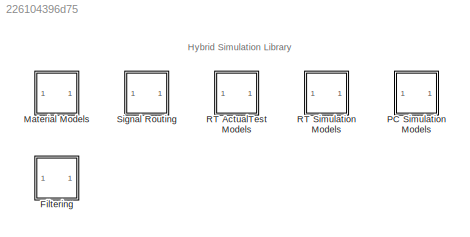
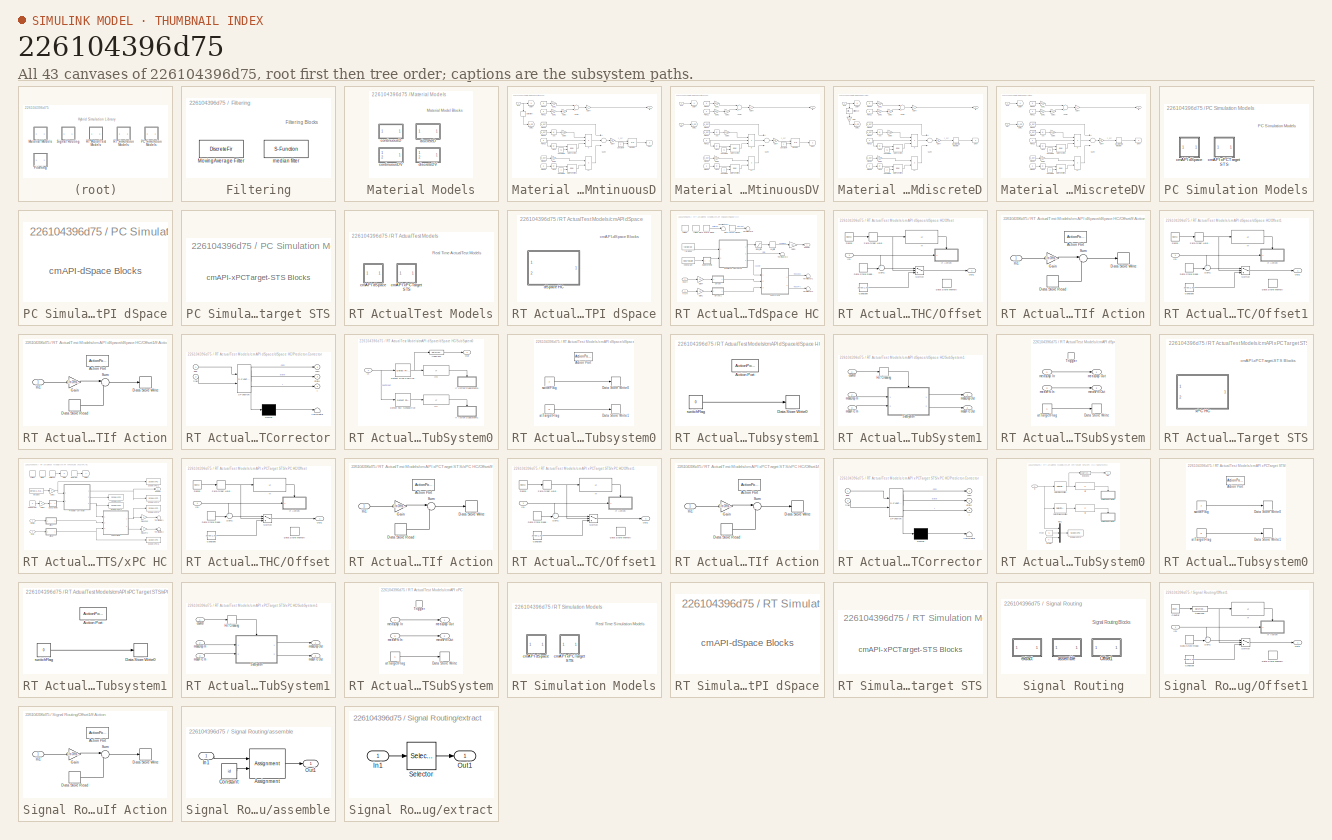
[diagram: thumbnail index - all 43 canvases of the model, root first then tree order]
MODEL slx_226104396d75
KIND library
BLOCK [SubSystem] Filtering
  Ports = []
  RequestExecContextInheritance = off
BLOCK [DiscreteFir] Filtering/MovingAverage Filter
  Coefficients = 1/numSample*ones(1,numSample)
  Ports = [1, 1]
BLOCK [S-Function] Filtering/median filter
  EnableBusSupport = off
  FunctionName = medianFilter
  Parameters = width
  Ports = [1, 1]
BLOCK [SubSystem] Material Models
  Ports = []
  RequestExecContextInheritance = off
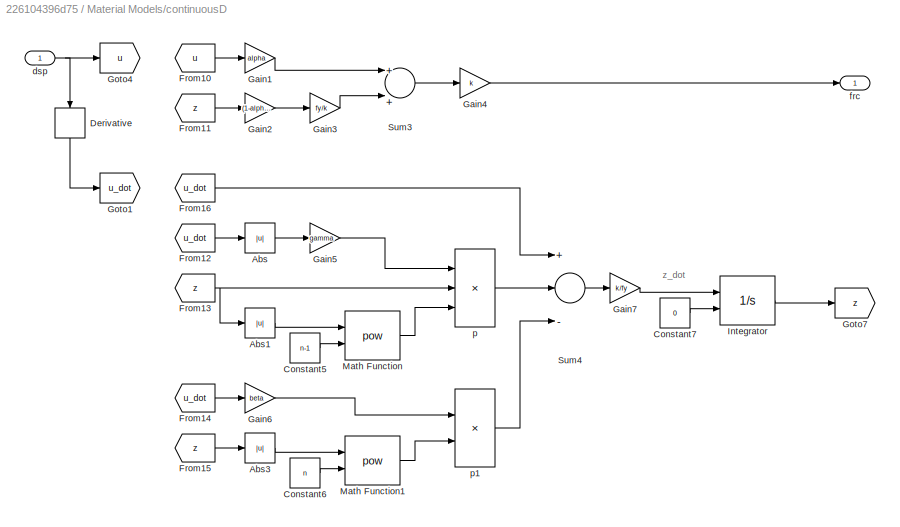
BLOCK [SubSystem] Material Models/continuousD
  Ports = [1, 1]
  RequestExecContextInheritance = off
BLOCK [Abs] Material Models/continuousD/Abs
BLOCK [Abs] Material Models/continuousD/Abs1
BLOCK [Abs] Material Models/continuousD/Abs3
BLOCK [Constant] Material Models/continuousD/Constant5
  Value = n-1
BLOCK [Constant] Material Models/continuousD/Constant6
  Value = n
BLOCK [Constant] Material Models/continuousD/Constant7
  Value = 0
BLOCK [Derivative] Material Models/continuousD/Derivative
BLOCK [From] Material Models/continuousD/From10
  GotoTag = u
BLOCK [From] Material Models/continuousD/From11
  GotoTag = z
BLOCK [From] Material Models/continuousD/From12
  GotoTag = u_dot
BLOCK [From] Material Models/continuousD/From13
  GotoTag = z
BLOCK [From] Material Models/continuousD/From14
  GotoTag = u_dot
BLOCK [From] Material Models/continuousD/From15
  GotoTag = z
BLOCK [From] Material Models/continuousD/From16
  GotoTag = u_dot
BLOCK [Gain] Material Models/continuousD/Gain1
  Gain = alpha
BLOCK [Gain] Material Models/continuousD/Gain2
  Gain = (1-alpha)
BLOCK [Gain] Material Models/continuousD/Gain3
  Gain = fy/k
BLOCK [Gain] Material Models/continuousD/Gain4
  Gain = k
BLOCK [Gain] Material Models/continuousD/Gain5
  Gain = gamma
BLOCK [Gain] Material Models/continuousD/Gain6
  Gain = beta
BLOCK [Gain] Material Models/continuousD/Gain7
  Gain = k/fy
BLOCK [Goto] Material Models/continuousD/Goto1
  GotoTag = u_dot
BLOCK [Goto] Material Models/continuousD/Goto4
  GotoTag = u
BLOCK [Goto] Material Models/continuousD/Goto7
  GotoTag = z
BLOCK [Integrator] Material Models/continuousD/Integrator
  InitialConditionSource = external
  Ports = [2, 1]
BLOCK [Math] Material Models/continuousD/Math Function
  Operator = pow
  Ports = [2, 1]
BLOCK [Math] Material Models/continuousD/Math Function1
  Operator = pow
  Ports = [2, 1]
BLOCK [Sum] Material Models/continuousD/Sum3
  Inputs = +|+
  Ports = [2, 1]
BLOCK [Sum] Material Models/continuousD/Sum4
  Inputs = +|-|-
  Ports = [3, 1]
BLOCK [Inport] Material Models/continuousD/dsp
  IconDisplay = Port number
BLOCK [Outport] Material Models/continuousD/frc
  IconDisplay = Port number
BLOCK [Product] Material Models/continuousD/p
  Inputs = ***
  Ports = [3, 1]
  RndMeth = Floor
BLOCK [Product] Material Models/continuousD/p1
  Inputs = **
  Ports = [2, 1]
  RndMeth = Floor
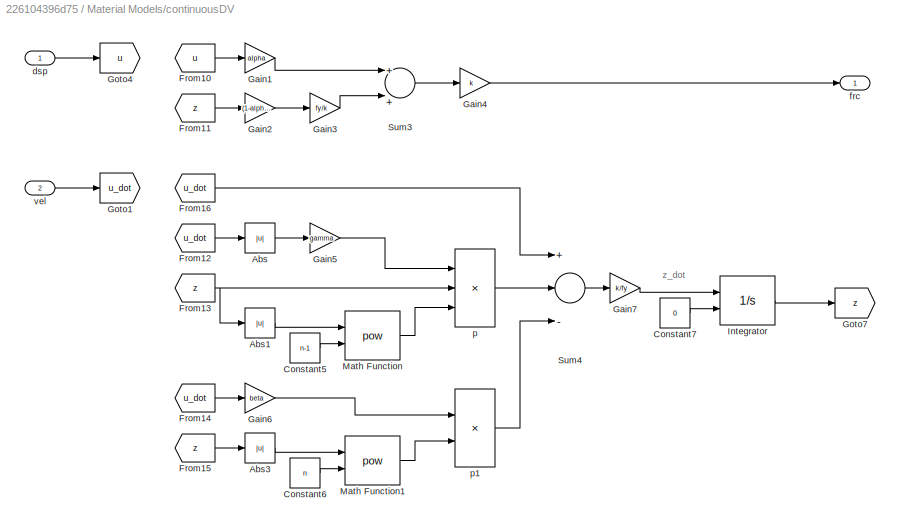
BLOCK [SubSystem] Material Models/continuousDV
  Ports = [2, 1]
  RequestExecContextInheritance = off
BLOCK [Abs] Material Models/continuousDV/Abs
BLOCK [Abs] Material Models/continuousDV/Abs1
BLOCK [Abs] Material Models/continuousDV/Abs3
BLOCK [Constant] Material Models/continuousDV/Constant5
  Value = n-1
BLOCK [Constant] Material Models/continuousDV/Constant6
  Value = n
BLOCK [Constant] Material Models/continuousDV/Constant7
  Value = 0
BLOCK [From] Material Models/continuousDV/From10
  GotoTag = u
BLOCK [From] Material Models/continuousDV/From11
  GotoTag = z
BLOCK [From] Material Models/continuousDV/From12
  GotoTag = u_dot
BLOCK [From] Material Models/continuousDV/From13
  GotoTag = z
BLOCK [From] Material Models/continuousDV/From14
  GotoTag = u_dot
BLOCK [From] Material Models/continuousDV/From15
  GotoTag = z
BLOCK [From] Material Models/continuousDV/From16
  GotoTag = u_dot
BLOCK [Gain] Material Models/continuousDV/Gain1
  Gain = alpha
BLOCK [Gain] Material Models/continuousDV/Gain2
  Gain = (1-alpha)
BLOCK [Gain] Material Models/continuousDV/Gain3
  Gain = fy/k
BLOCK [Gain] Material Models/continuousDV/Gain4
  Gain = k
BLOCK [Gain] Material Models/continuousDV/Gain5
  Gain = gamma
BLOCK [Gain] Material Models/continuousDV/Gain6
  Gain = beta
BLOCK [Gain] Material Models/continuousDV/Gain7
  Gain = k/fy
BLOCK [Goto] Material Models/continuousDV/Goto1
  GotoTag = u_dot
BLOCK [Goto] Material Models/continuousDV/Goto4
  GotoTag = u
BLOCK [Goto] Material Models/continuousDV/Goto7
  GotoTag = z
BLOCK [Integrator] Material Models/continuousDV/Integrator
  InitialConditionSource = external
  Ports = [2, 1]
BLOCK [Math] Material Models/continuousDV/Math Function
  Operator = pow
  Ports = [2, 1]
BLOCK [Math] Material Models/continuousDV/Math Function1
  Operator = pow
  Ports = [2, 1]
BLOCK [Sum] Material Models/continuousDV/Sum3
  Inputs = +|+
  Ports = [2, 1]
BLOCK [Sum] Material Models/continuousDV/Sum4
  Inputs = +|-|-
  Ports = [3, 1]
BLOCK [Inport] Material Models/continuousDV/dsp
  IconDisplay = Port number
BLOCK [Outport] Material Models/continuousDV/frc
  IconDisplay = Port number
BLOCK [Product] Material Models/continuousDV/p
  Inputs = ***
  Ports = [3, 1]
  RndMeth = Floor
BLOCK [Product] Material Models/continuousDV/p1
  Inputs = **
  Ports = [2, 1]
  RndMeth = Floor
BLOCK [Inport] Material Models/continuousDV/vel
  IconDisplay = Port number
  Port = 2
BLOCK [SubSystem] Material Models/discreteD
  Ports = [1, 1]
  RequestExecContextInheritance = off
BLOCK [Abs] Material Models/discreteD/Abs
BLOCK [Abs] Material Models/discreteD/Abs1
BLOCK [Abs] Material Models/discreteD/Abs3
BLOCK [Constant] Material Models/discreteD/Constant5
  Value = n-1
BLOCK [Constant] Material Models/discreteD/Constant6
  Value = n
BLOCK [Reference] Material Models/discreteD/Difference  REF=simulink/Discrete/Difference
  DoSatur = off
  ICPrevInput = 0.0
  InputProcessing = Inherited
  LockScale = off
  OutDataType = sfix(16)
  OutDataTypeStr = Inherit: Inherit via internal rule
  OutMax = []
  OutMin = []
  OutScaling = 2^-10
  OutputDataTypeScalingMode = Inherit via internal rule
  Ports = [1, 1]
  RndMeth = Floor
  SourceBlock = simulink/Discrete/Difference
  SourceType = Difference
BLOCK [DiscreteIntegrator] Material Models/discreteD/Discrete-Time Integrator
  Ports = [1, 1]
  SampleTime = -1
BLOCK [From] Material Models/discreteD/From10
  GotoTag = u
BLOCK [From] Material Models/discreteD/From11
  GotoTag = z
BLOCK [From] Material Models/discreteD/From12
  GotoTag = u_dot
BLOCK [From] Material Models/discreteD/From13
  GotoTag = z
BLOCK [From] Material Models/discreteD/From14
  GotoTag = u_dot
BLOCK [From] Material Models/discreteD/From15
  GotoTag = z
BLOCK [From] Material Models/discreteD/From16
  GotoTag = u_dot
BLOCK [Gain] Material Models/discreteD/Gain
  Gain = 1/dt
  OutDataTypeStr = Inherit: Inherit via internal rule
  ParamDataTypeStr = Inherit: Inherit via internal rule
  SaturateOnIntegerOverflow = off
BLOCK [Gain] Material Models/discreteD/Gain1
  Gain = alpha
BLOCK [Gain] Material Models/discreteD/Gain2
  Gain = (1-alpha)
BLOCK [Gain] Material Models/discreteD/Gain3
  Gain = fy/k
BLOCK [Gain] Material Models/discreteD/Gain4
  Gain = k
BLOCK [Gain] Material Models/discreteD/Gain5
  Gain = gamma
BLOCK [Gain] Material Models/discreteD/Gain6
  Gain = beta
BLOCK [Gain] Material Models/discreteD/Gain7
  Gain = k/fy
BLOCK [Goto] Material Models/discreteD/Goto1
  GotoTag = u_dot
BLOCK [Goto] Material Models/discreteD/Goto4
  GotoTag = u
BLOCK [Goto] Material Models/discreteD/Goto7
  GotoTag = z
BLOCK [Math] Material Models/discreteD/Math Function
  Operator = pow
  Ports = [2, 1]
BLOCK [Math] Material Models/discreteD/Math Function1
  Operator = pow
  Ports = [2, 1]
BLOCK [Sum] Material Models/discreteD/Sum3
  Inputs = +|+
  Ports = [2, 1]
BLOCK [Sum] Material Models/discreteD/Sum4
  Inputs = +|-|-
  Ports = [3, 1]
BLOCK [Inport] Material Models/discreteD/dsp
  IconDisplay = Port number
BLOCK [Outport] Material Models/discreteD/frc
  IconDisplay = Port number
BLOCK [Product] Material Models/discreteD/p
  Inputs = ***
  Ports = [3, 1]
  RndMeth = Floor
BLOCK [Product] Material Models/discreteD/p1
  Inputs = **
  Ports = [2, 1]
  RndMeth = Floor
BLOCK [SubSystem] Material Models/discreteDV
  Ports = [2, 1]
  RequestExecContextInheritance = off
BLOCK [Abs] Material Models/discreteDV/Abs
BLOCK [Abs] Material Models/discreteDV/Abs1
BLOCK [Abs] Material Models/discreteDV/Abs3
BLOCK [Constant] Material Models/discreteDV/Constant5
  Value = n-1
BLOCK [Constant] Material Models/discreteDV/Constant6
  Value = n
BLOCK [DiscreteIntegrator] Material Models/discreteDV/Discrete-Time Integrator
  Ports = [1, 1]
  SampleTime = -1
BLOCK [From] Material Models/discreteDV/From10
  GotoTag = u
BLOCK [From] Material Models/discreteDV/From11
  GotoTag = z
BLOCK [From] Material Models/discreteDV/From12
  GotoTag = u_dot
BLOCK [From] Material Models/discreteDV/From13
  GotoTag = z
BLOCK [From] Material Models/discreteDV/From14
  GotoTag = u_dot
BLOCK [From] Material Models/discreteDV/From15
  GotoTag = z
BLOCK [From] Material Models/discreteDV/From16
  GotoTag = u_dot
BLOCK [Gain] Material Models/discreteDV/Gain1
  Gain = alpha
BLOCK [Gain] Material Models/discreteDV/Gain2
  Gain = (1-alpha)
BLOCK [Gain] Material Models/discreteDV/Gain3
  Gain = fy/k
BLOCK [Gain] Material Models/discreteDV/Gain4
  Gain = k
BLOCK [Gain] Material Models/discreteDV/Gain5
  Gain = gamma
BLOCK [Gain] Material Models/discreteDV/Gain6
  Gain = beta
BLOCK [Gain] Material Models/discreteDV/Gain7
  Gain = k/fy
BLOCK [Goto] Material Models/discreteDV/Goto1
  GotoTag = u_dot
BLOCK [Goto] Material Models/discreteDV/Goto4
  GotoTag = u
BLOCK [Goto] Material Models/discreteDV/Goto7
  GotoTag = z
BLOCK [Math] Material Models/discreteDV/Math Function
  Operator = pow
  Ports = [2, 1]
BLOCK [Math] Material Models/discreteDV/Math Function1
  Operator = pow
  Ports = [2, 1]
BLOCK [Sum] Material Models/discreteDV/Sum3
  Inputs = +|+
  Ports = [2, 1]
BLOCK [Sum] Material Models/discreteDV/Sum4
  Inputs = +|-|-
  Ports = [3, 1]
BLOCK [Inport] Material Models/discreteDV/dsp
  IconDisplay = Port number
BLOCK [Outport] Material Models/discreteDV/frc
  IconDisplay = Port number
BLOCK [Product] Material Models/discreteDV/p
  Inputs = ***
  Ports = [3, 1]
  RndMeth = Floor
BLOCK [Product] Material Models/discreteDV/p1
  Inputs = **
  Ports = [2, 1]
  RndMeth = Floor
BLOCK [Inport] Material Models/discreteDV/vel
  IconDisplay = Port number
  Port = 2
BLOCK [SubSystem] PC Simulation Models
  Ports = []
  RequestExecContextInheritance = off
BLOCK [SubSystem] PC Simulation Models/cmAPI dSpace
  Ports = []
  RequestExecContextInheritance = off
BLOCK [SubSystem] PC Simulation Models/cmAPI xPCTarget STS
  Ports = []
  RequestExecContextInheritance = off
BLOCK [SubSystem] RT ActualTest Models
  Ports = []
  RequestExecContextInheritance = off
BLOCK [SubSystem] RT ActualTest Models/cmAPI dSpace
  Ports = []
  RequestExecContextInheritance = off
BLOCK [SubSystem] RT ActualTest Models/cmAPI dSpace/dSpace HC
  Ports = [2, 1]
  RequestExecContextInheritance = off
BLOCK [DataStoreRead] RT ActualTest Models/cmAPI dSpace/dSpace HC/Data Store Read
  DataStoreName = sFlag
  Ports = [0, 1]
  SampleTime = dtCon
BLOCK [DataStoreRead] RT ActualTest Models/cmAPI dSpace/dSpace HC/Data Store Read1
  DataStoreName = tFlag
  Ports = [0, 1]
  SampleTime = dtCon
BLOCK [Gain] RT ActualTest Models/cmAPI dSpace/dSpace HC/Gain1
  Gain = 10
BLOCK [Gain] RT ActualTest Models/cmAPI dSpace/dSpace HC/Gain3
  Gain = 0.1
BLOCK [Gain] RT ActualTest Models/cmAPI dSpace/dSpace HC/Gain4
  Gain = 10
BLOCK [SubSystem] RT ActualTest Models/cmAPI dSpace/dSpace HC/Offset
  Ports = [1, 1]
  RequestExecContextInheritance = off
BLOCK [Constant] RT ActualTest Models/cmAPI dSpace/dSpace HC/Offset/Constant
  Value = zeros(1,nS)
BLOCK [DataStoreMemory] RT ActualTest Models/cmAPI dSpace/dSpace HC/Offset/Data Store Memory
  DataStoreName = x0
  InitialValue = zeros(1,nS)
  OutDataTypeStr = double
  SignalType = real
BLOCK [DataStoreRead] RT ActualTest Models/cmAPI dSpace/dSpace HC/Offset/Data Store Read
  DataStoreName = x0
  Ports = [0, 1]
  SampleTime = dt
BLOCK [If] RT ActualTest Models/cmAPI dSpace/dSpace HC/Offset/If
  IfExpression = u1 < nOffset
  Ports = [1, 1]
  ShowElse = off
BLOCK [SubSystem] RT ActualTest Models/cmAPI dSpace/dSpace HC/Offset/If Action
  Ports = [1, 0, 0, 0, 0, 0, 0, 1]
  RequestExecContextInheritance = off
  TreatAsAtomicUnit = on
BLOCK [ActionPort] RT ActualTest Models/cmAPI dSpace/dSpace HC/Offset/If Action/Action Port
  PropagateVarSize = During execution
BLOCK [DataStoreRead] RT ActualTest Models/cmAPI dSpace/dSpace HC/Offset/If Action/Data Store Read
  DataStoreName = x0
  Ports = [0, 1]
  SampleTime = dt
BLOCK [DataStoreWrite] RT ActualTest Models/cmAPI dSpace/dSpace HC/Offset/If Action/Data Store Write
  DataStoreName = x0
  Ports = [1]
BLOCK [Gain] RT ActualTest Models/cmAPI dSpace/dSpace HC/Offset/If Action/Gain
  Gain = 1/nOffset
BLOCK [Inport] RT ActualTest Models/cmAPI dSpace/dSpace HC/Offset/If Action/In1
  IconDisplay = Port number
BLOCK [Sum] RT ActualTest Models/cmAPI dSpace/dSpace HC/Offset/If Action/Sum
  IconShape = round
  Inputs = |++
  Ports = [2, 1]
BLOCK [Inport] RT ActualTest Models/cmAPI dSpace/dSpace HC/Offset/In1
  IconDisplay = Port number
BLOCK [Outport] RT ActualTest Models/cmAPI dSpace/dSpace HC/Offset/Out1
  IconDisplay = Port number
BLOCK [Reference] RT ActualTest Models/cmAPI dSpace/dSpace HC/Offset/Ramp  REF=simulink/Sources/Ramp
  Ports = [0, 1]
  SourceBlock = simulink/Sources/Ramp
  SourceType = Ramp
  VectorParams1D = on
  X0 = 0
  slope = 1/dt
  start = 0
BLOCK [Sum] RT ActualTest Models/cmAPI dSpace/dSpace HC/Offset/Sum1
  IconShape = round
  Inputs = +-|
  Ports = [2, 1]
BLOCK [Switch] RT ActualTest Models/cmAPI dSpace/dSpace HC/Offset/Switch
  Threshold = nOffset
BLOCK [ZeroOrderHold] RT ActualTest Models/cmAPI dSpace/dSpace HC/Offset/Zero-Order Hold
  SampleTime = dt
BLOCK [SubSystem] RT ActualTest Models/cmAPI dSpace/dSpace HC/Offset1
  Ports = [1, 1]
  RequestExecContextInheritance = off
BLOCK [Constant] RT ActualTest Models/cmAPI dSpace/dSpace HC/Offset1/Constant
  Value = zeros(1,nS)
BLOCK [DataStoreMemory] RT ActualTest Models/cmAPI dSpace/dSpace HC/Offset1/Data Store Memory
  DataStoreName = x0
  InitialValue = zeros(1,nS)
  OutDataTypeStr = double
  SignalType = real
BLOCK [DataStoreRead] RT ActualTest Models/cmAPI dSpace/dSpace HC/Offset1/Data Store Read
  DataStoreName = x0
  Ports = [0, 1]
  SampleTime = dt
BLOCK [If] RT ActualTest Models/cmAPI dSpace/dSpace HC/Offset1/If
  IfExpression = u1 < nOffset
  Ports = [1, 1]
  ShowElse = off
BLOCK [SubSystem] RT ActualTest Models/cmAPI dSpace/dSpace HC/Offset1/If Action
  Ports = [1, 0, 0, 0, 0, 0, 0, 1]
  RequestExecContextInheritance = off
  TreatAsAtomicUnit = on
BLOCK [ActionPort] RT ActualTest Models/cmAPI dSpace/dSpace HC/Offset1/If Action/Action Port
  PropagateVarSize = During execution
BLOCK [DataStoreRead] RT ActualTest Models/cmAPI dSpace/dSpace HC/Offset1/If Action/Data Store Read
  DataStoreName = x0
  Ports = [0, 1]
  SampleTime = dt
BLOCK [DataStoreWrite] RT ActualTest Models/cmAPI dSpace/dSpace HC/Offset1/If Action/Data Store Write
  DataStoreName = x0
  Ports = [1]
BLOCK [Gain] RT ActualTest Models/cmAPI dSpace/dSpace HC/Offset1/If Action/Gain
  Gain = 1/nOffset
BLOCK [Inport] RT ActualTest Models/cmAPI dSpace/dSpace HC/Offset1/If Action/In1
  IconDisplay = Port number
BLOCK [Sum] RT ActualTest Models/cmAPI dSpace/dSpace HC/Offset1/If Action/Sum
  IconShape = round
  Inputs = |++
  Ports = [2, 1]
BLOCK [Inport] RT ActualTest Models/cmAPI dSpace/dSpace HC/Offset1/In1
  IconDisplay = Port number
BLOCK [Outport] RT ActualTest Models/cmAPI dSpace/dSpace HC/Offset1/Out1
  IconDisplay = Port number
BLOCK [Reference] RT ActualTest Models/cmAPI dSpace/dSpace HC/Offset1/Ramp  REF=simulink/Sources/Ramp
  Ports = [0, 1]
  SourceBlock = simulink/Sources/Ramp
  SourceType = Ramp
  VectorParams1D = on
  X0 = 0
  slope = 1/dt
  start = 0
BLOCK [Sum] RT ActualTest Models/cmAPI dSpace/dSpace HC/Offset1/Sum1
  IconShape = round
  Inputs = +-|
  Ports = [2, 1]
BLOCK [Switch] RT ActualTest Models/cmAPI dSpace/dSpace HC/Offset1/Switch
  Threshold = nOffset
BLOCK [ZeroOrderHold] RT ActualTest Models/cmAPI dSpace/dSpace HC/Offset1/Zero-Order Hold
  SampleTime = dt
BLOCK [SubSystem] RT ActualTest Models/cmAPI dSpace/dSpace HC/Predictor-Corrector
  ErrorFcn = Stateflow.Translate.translate
  PermitHierarchicalResolution = ExplicitOnly
  Ports = [2, 3]
  RequestExecContextInheritance = off
  SFBlockType = Chart
  TreatAsAtomicUnit = on
BLOCK [Demux] RT ActualTest Models/cmAPI dSpace/dSpace HC/Predictor-Corrector/ Demux 
  Outputs = 1
  Ports = [1, 1]
BLOCK [S-Function] RT ActualTest Models/cmAPI dSpace/dSpace HC/Predictor-Corrector/ SFunction 
  EnableBusSupport = off
  FunctionName = sf_sfun
  Parameters = N,iDelay,nAct
  PortCounts = [2 4]
  Ports = [2, 4]
  Tag = Stateflow S-Function HybridSimLib 1
BLOCK [Terminator] RT ActualTest Models/cmAPI dSpace/dSpace HC/Predictor-Corrector/ Terminator 
BLOCK [Outport] RT ActualTest Models/cmAPI dSpace/dSpace HC/Predictor-Corrector/com
  IconDisplay = Port number
BLOCK [Inport] RT ActualTest Models/cmAPI dSpace/dSpace HC/Predictor-Corrector/dsp
  IconDisplay = Port number
BLOCK [Inport] RT ActualTest Models/cmAPI dSpace/dSpace HC/Predictor-Corrector/flag
  IconDisplay = Port number
  Port = 2
BLOCK [Outport] RT ActualTest Models/cmAPI dSpace/dSpace HC/Predictor-Corrector/i
  IconDisplay = Port number
  Port = 3
BLOCK [Outport] RT ActualTest Models/cmAPI dSpace/dSpace HC/Predictor-Corrector/state
  IconDisplay = Port number
  Port = 2
BLOCK [SubSystem] RT ActualTest Models/cmAPI dSpace/dSpace HC/SubSystem0
  Ports = [1, 1]
  RequestExecContextInheritance = off
BLOCK [Reference] RT ActualTest Models/cmAPI dSpace/dSpace HC/SubSystem0/Detect Fall Nonpositive  REF=simulink/Logic and Bit
Operations/Detect Fall
Nonpositive
  InputProcessing = Inherited
  OutDataTypeStr = uint8
  Ports = [1, 1]
  SourceBlock = simulink/Logic and Bit\nOperations/Detect Fall\nNonpositive
  SourceType = Detect Fall Nonpositive
  vinit = 0
BLOCK [Reference] RT ActualTest Models/cmAPI dSpace/dSpace HC/SubSystem0/Detect Rise Positive  REF=simulink/Logic and Bit
Operations/Detect Rise
Positive
  InputProcessing = Inherited
  OutDataTypeStr = uint8
  Ports = [1, 1]
  SourceBlock = simulink/Logic and Bit\nOperations/Detect Rise\nPositive
  SourceType = Detect Rise Positive
  vinit = 0
BLOCK [SubSystem] RT ActualTest Models/cmAPI dSpace/dSpace HC/SubSystem0/If Action Subsystem0
  Ports = [0, 0, 0, 0, 0, 0, 0, 1]
  RequestExecContextInheritance = off
  TreatAsAtomicUnit = on
BLOCK [ActionPort] RT ActualTest Models/cmAPI dSpace/dSpace HC/SubSystem0/If Action Subsystem0/Action Port
  PropagateVarSize = During execution
BLOCK [DataStoreWrite] RT ActualTest Models/cmAPI dSpace/dSpace HC/SubSystem0/If Action Subsystem0/Data Store Write0
  DataStoreName = sFlag
  Ports = [1]
BLOCK [DataStoreWrite] RT ActualTest Models/cmAPI dSpace/dSpace HC/SubSystem0/If Action Subsystem0/Data Store Write1
  DataStoreName = tFlag
  Ports = [1]
BLOCK [Constant] RT ActualTest Models/cmAPI dSpace/dSpace HC/SubSystem0/If Action Subsystem0/atTargetFlag
  OutDataTypeStr = uint32
  SampleTime = dtCon
  Value = 0
BLOCK [Constant] RT ActualTest Models/cmAPI dSpace/dSpace HC/SubSystem0/If Action Subsystem0/switchFlag
  OutDataTypeStr = uint32
  SampleTime = dtCon
BLOCK [SubSystem] RT ActualTest Models/cmAPI dSpace/dSpace HC/SubSystem0/If Action Subsystem1
  Ports = [0, 0, 0, 0, 0, 0, 0, 1]
  RequestExecContextInheritance = off
  TreatAsAtomicUnit = on
BLOCK [ActionPort] RT ActualTest Models/cmAPI dSpace/dSpace HC/SubSystem0/If Action Subsystem1/Action Port
  PropagateVarSize = During execution
BLOCK [DataStoreWrite] RT ActualTest Models/cmAPI dSpace/dSpace HC/SubSystem0/If Action Subsystem1/Data Store Write0
  DataStoreName = sFlag
  Ports = [1]
BLOCK [Constant] RT ActualTest Models/cmAPI dSpace/dSpace HC/SubSystem0/If Action Subsystem1/switchFlag
  OutDataTypeStr = uint32
  SampleTime = dtCon
  Value = 0
BLOCK [If] RT ActualTest Models/cmAPI dSpace/dSpace HC/SubSystem0/If0
  IfExpression = u1 == 1
  Ports = [1, 1]
  ShowElse = off
BLOCK [If] RT ActualTest Models/cmAPI dSpace/dSpace HC/SubSystem0/If1
  IfExpression = u1 == 1
  Ports = [1, 1]
  ShowElse = off
BLOCK [Inport] RT ActualTest Models/cmAPI dSpace/dSpace HC/SubSystem0/In
  IconDisplay = Port number
BLOCK [Outport] RT ActualTest Models/cmAPI dSpace/dSpace HC/SubSystem0/Out
  IconDisplay = Port number
BLOCK [DataTypeConversion] RT ActualTest Models/cmAPI dSpace/dSpace HC/SubSystem0/typeConv
  OutDataTypeStr = uint32
BLOCK [SubSystem] RT ActualTest Models/cmAPI dSpace/dSpace HC/SubSystem1
  Ports = [3, 2]
  RequestExecContextInheritance = off
BLOCK [HitCross] RT ActualTest Models/cmAPI dSpace/dSpace HC/SubSystem1/Hit Crossing
  HitCrossingOffset = iDelay
  Ports = [1, 1]
BLOCK [SubSystem] RT ActualTest Models/cmAPI dSpace/dSpace HC/SubSystem1/SubSystem
  Ports = [2, 2, 0, 1]
  RequestExecContextInheritance = off
  TreatAsAtomicUnit = on
BLOCK [DataStoreWrite] RT ActualTest Models/cmAPI dSpace/dSpace HC/SubSystem1/SubSystem/Data Store Write
  DataStoreName = tFlag
  Ports = [1]
BLOCK [TriggerPort] RT ActualTest Models/cmAPI dSpace/dSpace HC/SubSystem1/SubSystem/Trigger
  Ports = []
  StatesWhenEnabling = held
BLOCK [Constant] RT ActualTest Models/cmAPI dSpace/dSpace HC/SubSystem1/SubSystem/atTargetFlag
  OutDataTypeStr = uint32
  SampleTime = -1
BLOCK [Inport] RT ActualTest Models/cmAPI dSpace/dSpace HC/SubSystem1/SubSystem/measDsp In
  IconDisplay = Port number
BLOCK [Outport] RT ActualTest Models/cmAPI dSpace/dSpace HC/SubSystem1/SubSystem/measDsp Out
  IconDisplay = Port number
  InitialOutput = [0]
BLOCK [Inport] RT ActualTest Models/cmAPI dSpace/dSpace HC/SubSystem1/SubSystem/measFrc In
  IconDisplay = Port number
  Port = 2
BLOCK [Outport] RT ActualTest Models/cmAPI dSpace/dSpace HC/SubSystem1/SubSystem/measFrc Out
  IconDisplay = Port number
  InitialOutput = [0]
  Port = 2
BLOCK [Inport] RT ActualTest Models/cmAPI dSpace/dSpace HC/SubSystem1/counter
  IconDisplay = Port number
BLOCK [Inport] RT ActualTest Models/cmAPI dSpace/dSpace HC/SubSystem1/measDsp In
  IconDisplay = Port number
  Port = 2
BLOCK [Outport] RT ActualTest Models/cmAPI dSpace/dSpace HC/SubSystem1/measDsp Out
  IconDisplay = Port number
BLOCK [Inport] RT ActualTest Models/cmAPI dSpace/dSpace HC/SubSystem1/measFrc In
  IconDisplay = Port number
  Port = 3
BLOCK [Outport] RT ActualTest Models/cmAPI dSpace/dSpace HC/SubSystem1/measFrc Out
  IconDisplay = Port number
  Port = 2
BLOCK [Terminator] RT ActualTest Models/cmAPI dSpace/dSpace HC/Terminator1
BLOCK [Terminator] RT ActualTest Models/cmAPI dSpace/dSpace HC/Terminator2
BLOCK [Terminator] RT ActualTest Models/cmAPI dSpace/dSpace HC/Terminator3
BLOCK [Terminator] RT ActualTest Models/cmAPI dSpace/dSpace HC/Terminator4
BLOCK [Terminator] RT ActualTest Models/cmAPI dSpace/dSpace HC/Terminator5
BLOCK [Saturate] RT ActualTest Models/cmAPI dSpace/dSpace HC/disp_limit
  InputPortMap = u0
  LowerLimit = -dspLim
  Ports = [1, 1]
  UpperLimit = dspLim
BLOCK [Inport] RT ActualTest Models/cmAPI dSpace/dSpace HC/dspIn
  IconDisplay = Port number
BLOCK [Outport] RT ActualTest Models/cmAPI dSpace/dSpace HC/dspOut
  IconDisplay = Port number
BLOCK [Inport] RT ActualTest Models/cmAPI dSpace/dSpace HC/frcIn
  IconDisplay = Port number
  Port = 2
BLOCK [Constant] RT ActualTest Models/cmAPI dSpace/dSpace HC/newTarget
  OutDataTypeStr = uint32
  SampleTime = dtCon
  Value = newTarget
BLOCK [DataStoreMemory] RT ActualTest Models/cmAPI dSpace/dSpace HC/sMem
  DataStoreName = sFlag
  OutDataTypeStr = uint32
  SignalType = real
BLOCK [DataStoreMemory] RT ActualTest Models/cmAPI dSpace/dSpace HC/tMem
  DataStoreName = tFlag
  OutDataTypeStr = uint32
  SignalType = real
BLOCK [Constant] RT ActualTest Models/cmAPI dSpace/dSpace HC/targDsp
  SampleTime = dtCon
  Value = targDsp
BLOCK [RateLimiter] RT ActualTest Models/cmAPI dSpace/dSpace HC/vel_limit
  FallingSlewLimit = -velLim
  RisingSlewLimit = velLim
BLOCK [SubSystem] RT ActualTest Models/cmAPI xPCTarget STS
  Ports = []
  RequestExecContextInheritance = off
BLOCK [SubSystem] RT ActualTest Models/cmAPI xPCTarget STS/xPC HC
  Ports = [2, 1]
  RequestExecContextInheritance = off
BLOCK [Goto] RT ActualTest Models/cmAPI xPCTarget STS/xPC HC/Goto
  GotoTag = s
  TagVisibility = global
BLOCK [Goto] RT ActualTest Models/cmAPI xPCTarget STS/xPC HC/Goto1
  GotoTag = t
  TagVisibility = global
BLOCK [SubSystem] RT ActualTest Models/cmAPI xPCTarget STS/xPC HC/Offset
  Ports = [1, 1]
  RequestExecContextInheritance = off
BLOCK [Constant] RT ActualTest Models/cmAPI xPCTarget STS/xPC HC/Offset/Constant
  Value = zeros(1,nS)
BLOCK [DataStoreMemory] RT ActualTest Models/cmAPI xPCTarget STS/xPC HC/Offset/Data Store Memory
  DataStoreName = x0
  InitialValue = zeros(1,nS)
  OutDataTypeStr = double
  SignalType = real
BLOCK [DataStoreRead] RT ActualTest Models/cmAPI xPCTarget STS/xPC HC/Offset/Data Store Read
  DataStoreName = x0
  Ports = [0, 1]
  SampleTime = dt
BLOCK [If] RT ActualTest Models/cmAPI xPCTarget STS/xPC HC/Offset/If
  IfExpression = u1 < nOffset
  Ports = [1, 1]
  ShowElse = off
BLOCK [SubSystem] RT ActualTest Models/cmAPI xPCTarget STS/xPC HC/Offset/If Action
  Ports = [1, 0, 0, 0, 0, 0, 0, 1]
  RequestExecContextInheritance = off
  TreatAsAtomicUnit = on
BLOCK [ActionPort] RT ActualTest Models/cmAPI xPCTarget STS/xPC HC/Offset/If Action/Action Port
  PropagateVarSize = During execution
BLOCK [DataStoreRead] RT ActualTest Models/cmAPI xPCTarget STS/xPC HC/Offset/If Action/Data Store Read
  DataStoreName = x0
  Ports = [0, 1]
  SampleTime = dt
BLOCK [DataStoreWrite] RT ActualTest Models/cmAPI xPCTarget STS/xPC HC/Offset/If Action/Data Store Write
  DataStoreName = x0
  Ports = [1]
BLOCK [Gain] RT ActualTest Models/cmAPI xPCTarget STS/xPC HC/Offset/If Action/Gain
  Gain = 1/nOffset
BLOCK [Inport] RT ActualTest Models/cmAPI xPCTarget STS/xPC HC/Offset/If Action/In1
  IconDisplay = Port number
BLOCK [Sum] RT ActualTest Models/cmAPI xPCTarget STS/xPC HC/Offset/If Action/Sum
  IconShape = round
  Inputs = |++
  Ports = [2, 1]
BLOCK [Inport] RT ActualTest Models/cmAPI xPCTarget STS/xPC HC/Offset/In1
  IconDisplay = Port number
BLOCK [Outport] RT ActualTest Models/cmAPI xPCTarget STS/xPC HC/Offset/Out1
  IconDisplay = Port number
BLOCK [Reference] RT ActualTest Models/cmAPI xPCTarget STS/xPC HC/Offset/Ramp  REF=simulink/Sources/Ramp
  Ports = [0, 1]
  SourceBlock = simulink/Sources/Ramp
  SourceType = Ramp
  VectorParams1D = on
  X0 = 0
  slope = 1/dt
  start = 0
BLOCK [Sum] RT ActualTest Models/cmAPI xPCTarget STS/xPC HC/Offset/Sum1
  IconShape = round
  Inputs = +-|
  Ports = [2, 1]
BLOCK [Switch] RT ActualTest Models/cmAPI xPCTarget STS/xPC HC/Offset/Switch
  Threshold = nOffset
BLOCK [ZeroOrderHold] RT ActualTest Models/cmAPI xPCTarget STS/xPC HC/Offset/Zero-Order Hold
  SampleTime = dt
BLOCK [SubSystem] RT ActualTest Models/cmAPI xPCTarget STS/xPC HC/Offset1
  Ports = [1, 1]
  RequestExecContextInheritance = off
BLOCK [Constant] RT ActualTest Models/cmAPI xPCTarget STS/xPC HC/Offset1/Constant
  Value = zeros(1,nS)
BLOCK [DataStoreMemory] RT ActualTest Models/cmAPI xPCTarget STS/xPC HC/Offset1/Data Store Memory
  DataStoreName = x0
  InitialValue = zeros(1,nS)
  OutDataTypeStr = double
  SignalType = real
BLOCK [DataStoreRead] RT ActualTest Models/cmAPI xPCTarget STS/xPC HC/Offset1/Data Store Read
  DataStoreName = x0
  Ports = [0, 1]
  SampleTime = dt
BLOCK [If] RT ActualTest Models/cmAPI xPCTarget STS/xPC HC/Offset1/If
  IfExpression = u1 < nOffset
  Ports = [1, 1]
  ShowElse = off
BLOCK [SubSystem] RT ActualTest Models/cmAPI xPCTarget STS/xPC HC/Offset1/If Action
  Ports = [1, 0, 0, 0, 0, 0, 0, 1]
  RequestExecContextInheritance = off
  TreatAsAtomicUnit = on
BLOCK [ActionPort] RT ActualTest Models/cmAPI xPCTarget STS/xPC HC/Offset1/If Action/Action Port
  PropagateVarSize = During execution
BLOCK [DataStoreRead] RT ActualTest Models/cmAPI xPCTarget STS/xPC HC/Offset1/If Action/Data Store Read
  DataStoreName = x0
  Ports = [0, 1]
  SampleTime = dt
BLOCK [DataStoreWrite] RT ActualTest Models/cmAPI xPCTarget STS/xPC HC/Offset1/If Action/Data Store Write
  DataStoreName = x0
  Ports = [1]
BLOCK [Gain] RT ActualTest Models/cmAPI xPCTarget STS/xPC HC/Offset1/If Action/Gain
  Gain = 1/nOffset
BLOCK [Inport] RT ActualTest Models/cmAPI xPCTarget STS/xPC HC/Offset1/If Action/In1
  IconDisplay = Port number
BLOCK [Sum] RT ActualTest Models/cmAPI xPCTarget STS/xPC HC/Offset1/If Action/Sum
  IconShape = round
  Inputs = |++
  Ports = [2, 1]
BLOCK [Inport] RT ActualTest Models/cmAPI xPCTarget STS/xPC HC/Offset1/In1
  IconDisplay = Port number
BLOCK [Outport] RT ActualTest Models/cmAPI xPCTarget STS/xPC HC/Offset1/Out1
  IconDisplay = Port number
BLOCK [Reference] RT ActualTest Models/cmAPI xPCTarget STS/xPC HC/Offset1/Ramp  REF=simulink/Sources/Ramp
  Ports = [0, 1]
  SourceBlock = simulink/Sources/Ramp
  SourceType = Ramp
  VectorParams1D = on
  X0 = 0
  slope = 1/dt
  start = 0
BLOCK [Sum] RT ActualTest Models/cmAPI xPCTarget STS/xPC HC/Offset1/Sum1
  IconShape = round
  Inputs = +-|
  Ports = [2, 1]
BLOCK [Switch] RT ActualTest Models/cmAPI xPCTarget STS/xPC HC/Offset1/Switch
  Threshold = nOffset
BLOCK [ZeroOrderHold] RT ActualTest Models/cmAPI xPCTarget STS/xPC HC/Offset1/Zero-Order Hold
  SampleTime = dt
BLOCK [SubSystem] RT ActualTest Models/cmAPI xPCTarget STS/xPC HC/Predictor-Corrector
  ErrorFcn = Stateflow.Translate.translate
  PermitHierarchicalResolution = ExplicitOnly
  Ports = [2, 3]
  RequestExecContextInheritance = off
  SFBlockType = Chart
  TreatAsAtomicUnit = on
BLOCK [Demux] RT ActualTest Models/cmAPI xPCTarget STS/xPC HC/Predictor-Corrector/ Demux 
  Outputs = 1
  Ports = [1, 1]
BLOCK [S-Function] RT ActualTest Models/cmAPI xPCTarget STS/xPC HC/Predictor-Corrector/ SFunction 
  EnableBusSupport = off
  FunctionName = sf_sfun
  Parameters = N,iDelay,nAct
  PortCounts = [2 4]
  Ports = [2, 4]
  Tag = Stateflow S-Function HybridSimLib 4
BLOCK [Terminator] RT ActualTest Models/cmAPI xPCTarget STS/xPC HC/Predictor-Corrector/ Terminator 
BLOCK [Outport] RT ActualTest Models/cmAPI xPCTarget STS/xPC HC/Predictor-Corrector/com
  IconDisplay = Port number
BLOCK [Inport] RT ActualTest Models/cmAPI xPCTarget STS/xPC HC/Predictor-Corrector/dsp
  IconDisplay = Port number
BLOCK [Inport] RT ActualTest Models/cmAPI xPCTarget STS/xPC HC/Predictor-Corrector/flag
  IconDisplay = Port number
  Port = 2
BLOCK [Outport] RT ActualTest Models/cmAPI xPCTarget STS/xPC HC/Predictor-Corrector/i
  IconDisplay = Port number
  Port = 3
BLOCK [Outport] RT ActualTest Models/cmAPI xPCTarget STS/xPC HC/Predictor-Corrector/state
  IconDisplay = Port number
  Port = 2
BLOCK [Reference] RT ActualTest Models/cmAPI xPCTarget STS/xPC HC/Scope (xPC)   REF=xpclib/Misc./Scope (xPC) 
  Ports = [1]
  SourceBlock = xpclib/Misc./Scope (xPC)
  SourceType = xpcscopeblock
  autorestart = on
  autostart = on
  dynamicfilemode = off
  filename = state.dat
  formatstr = '%15.6f'
  grid = on
  interleave = 1
  maxwritefilesize = 512*1024^2
  mode = Lazy
  noprepostsamples = 0
  nosamples = 4096
  scopeno = 4
  scopetype = File
  triggerlevel = 0.0
  triggermode = FreeRun
  triggersample = 0
  triggerscope = 1
  triggersignal = 1
  triggerslope = Either
  viewmode = Graphical redraw
  writesize = 512
  ylimits = [0,3]
BLOCK [Reference] RT ActualTest Models/cmAPI xPCTarget STS/xPC HC/Scope (xPC) 1  REF=xpclib/Misc./Scope (xPC) 
  Ports = [1]
  SourceBlock = xpclib/Misc./Scope (xPC)
  SourceType = xpcscopeblock
  autorestart = on
  autostart = on
  dynamicfilemode = off
  filename = targDsp.dat
  formatstr = '%15.6f'
  grid = on
  interleave = 1
  maxwritefilesize = 512*1024^2
  mode = Lazy
  noprepostsamples = 0
  nosamples = 4096
  scopeno = 1
  scopetype = File
  triggerlevel = 0.0
  triggermode = FreeRun
  triggersample = 0
  triggerscope = 1
  triggersignal = 1
  triggerslope = Either
  viewmode = Numerical
  writesize = 512
  ylimits = [-4,4]
BLOCK [Reference] RT ActualTest Models/cmAPI xPCTarget STS/xPC HC/Scope (xPC) 2  REF=xpclib/Misc./Scope (xPC) 
  Ports = [1]
  SourceBlock = xpclib/Misc./Scope (xPC)
  SourceType = xpcscopeblock
  autorestart = on
  autostart = on
  dynamicfilemode = off
  filename = count.dat
  formatstr = '%15.6f'
  grid = on
  interleave = 1
  maxwritefilesize = 512*1024^2
  mode = Lazy
  noprepostsamples = 0
  nosamples = 4096
  scopeno = 5
  scopetype = File
  triggerlevel = 0.0
  triggermode = FreeRun
  triggersample = 0
  triggerscope = 1
  triggersignal = 1
  triggerslope = Either
  viewmode = Numerical
  writesize = 512
  ylimits = [0,3]
BLOCK [Reference] RT ActualTest Models/cmAPI xPCTarget STS/xPC HC/Scope (xPC) 4  REF=xpclib/Misc./Scope (xPC) 
  Ports = [1]
  SourceBlock = xpclib/Misc./Scope (xPC)
  SourceType = xpcscopeblock
  autorestart = on
  autostart = on
  dynamicfilemode = off
  filename = commDsp.dat
  formatstr = '%15.6f'
  grid = on
  interleave = 1
  maxwritefilesize = 512*1024^2
  mode = Lazy
  noprepostsamples = 0
  nosamples = 4096
  scopeno = 2
  scopetype = File
  triggerlevel = 0.0
  triggermode = FreeRun
  triggersample = 0
  triggerscope = 1
  triggersignal = 1
  triggerslope = Either
  viewmode = Numerical
  writesize = 512
  ylimits = [-4,4]
BLOCK [Reference] RT ActualTest Models/cmAPI xPCTarget STS/xPC HC/Scope (xPC) 5  REF=xpclib/Misc./Scope (xPC) 
  Ports = [1]
  SourceBlock = xpclib/Misc./Scope (xPC)
  SourceType = xpcscopeblock
  autorestart = on
  autostart = on
  dynamicfilemode = off
  filename = measDsp.dat
  formatstr = '%15.6f'
  grid = on
  interleave = 1
  maxwritefilesize = 512*1024^2
  mode = Lazy
  noprepostsamples = 0
  nosamples = 4096
  scopeno = 3
  scopetype = File
  triggerlevel = 0.0
  triggermode = FreeRun
  triggersample = 0
  triggerscope = 1
  triggersignal = 1
  triggerslope = Either
  viewmode = Numerical
  writesize = 512
  ylimits = [-4,4]
BLOCK [Reference] RT ActualTest Models/cmAPI xPCTarget STS/xPC HC/Scope (xPC) 6  REF=xpclib/Misc./Scope (xPC) 
  Ports = [1]
  SourceBlock = xpclib/Misc./Scope (xPC)
  SourceType = xpcscopeblock
  autorestart = on
  autostart = on
  dynamicfilemode = off
  filename = measFrc.dat
  formatstr = '%15.6f'
  grid = on
  interleave = 1
  maxwritefilesize = 512*1024^2
  mode = Lazy
  noprepostsamples = 0
  nosamples = 4096
  scopeno = 6
  scopetype = File
  triggerlevel = 0.0
  triggermode = FreeRun
  triggersample = 0
  triggerscope = 1
  triggersignal = 1
  triggerslope = Either
  viewmode = Numerical
  writesize = 512
  ylimits = [0,3]
BLOCK [SubSystem] RT ActualTest Models/cmAPI xPCTarget STS/xPC HC/SubSystem0
  Ports = [1, 1]
  RequestExecContextInheritance = off
BLOCK [Reference] RT ActualTest Models/cmAPI xPCTarget STS/xPC HC/SubSystem0/Detect Fall Nonpositive  REF=simulink/Logic and Bit
Operations/Detect Fall
Nonpositive
  InputProcessing = Inherited
  OutDataTypeStr = uint8
  Ports = [1, 1]
  SourceBlock = simulink/Logic and Bit\nOperations/Detect Fall\nNonpositive
  SourceType = Detect Fall Nonpositive
  vinit = 0
BLOCK [Reference] RT ActualTest Models/cmAPI xPCTarget STS/xPC HC/SubSystem0/Detect Rise Positive  REF=simulink/Logic and Bit
Operations/Detect Rise
Positive
  InputProcessing = Inherited
  OutDataTypeStr = uint8
  Ports = [1, 1]
  SourceBlock = simulink/Logic and Bit\nOperations/Detect Rise\nPositive
  SourceType = Detect Rise Positive
  vinit = 0
BLOCK [From] RT ActualTest Models/cmAPI xPCTarget STS/xPC HC/SubSystem0/From
  GotoTag = s
  IconDisplay = Signal name
  TagVisibility = global
BLOCK [From] RT ActualTest Models/cmAPI xPCTarget STS/xPC HC/SubSystem0/From1
  GotoTag = t
  IconDisplay = Signal name
  TagVisibility = global
BLOCK [SubSystem] RT ActualTest Models/cmAPI xPCTarget STS/xPC HC/SubSystem0/If Action Subsystem0
  Ports = [0, 0, 0, 0, 0, 0, 0, 1]
  RequestExecContextInheritance = off
  TreatAsAtomicUnit = on
BLOCK [ActionPort] RT ActualTest Models/cmAPI xPCTarget STS/xPC HC/SubSystem0/If Action Subsystem0/Action Port
  PropagateVarSize = During execution
BLOCK [DataStoreWrite] RT ActualTest Models/cmAPI xPCTarget STS/xPC HC/SubSystem0/If Action Subsystem0/Data Store Write0
  DataStoreName = sFlag
  Ports = [1]
BLOCK [DataStoreWrite] RT ActualTest Models/cmAPI xPCTarget STS/xPC HC/SubSystem0/If Action Subsystem0/Data Store Write1
  DataStoreName = tFlag
  Ports = [1]
BLOCK [Constant] RT ActualTest Models/cmAPI xPCTarget STS/xPC HC/SubSystem0/If Action Subsystem0/atTargetFlag
  SampleTime = dtCon
  Value = 0
BLOCK [Constant] RT ActualTest Models/cmAPI xPCTarget STS/xPC HC/SubSystem0/If Action Subsystem0/switchFlag
  SampleTime = dtCon
BLOCK [SubSystem] RT ActualTest Models/cmAPI xPCTarget STS/xPC HC/SubSystem0/If Action Subsystem1
  Ports = [0, 0, 0, 0, 0, 0, 0, 1]
  RequestExecContextInheritance = off
  TreatAsAtomicUnit = on
BLOCK [ActionPort] RT ActualTest Models/cmAPI xPCTarget STS/xPC HC/SubSystem0/If Action Subsystem1/Action Port
  PropagateVarSize = During execution
BLOCK [DataStoreWrite] RT ActualTest Models/cmAPI xPCTarget STS/xPC HC/SubSystem0/If Action Subsystem1/Data Store Write0
  DataStoreName = sFlag
  Ports = [1]
BLOCK [Constant] RT ActualTest Models/cmAPI xPCTarget STS/xPC HC/SubSystem0/If Action Subsystem1/switchFlag
  SampleTime = dtCon
  Value = 0
BLOCK [If] RT ActualTest Models/cmAPI xPCTarget STS/xPC HC/SubSystem0/If0
  IfExpression = u1 == 1
  Ports = [1, 1]
  ShowElse = off
BLOCK [If] RT ActualTest Models/cmAPI xPCTarget STS/xPC HC/SubSystem0/If1
  IfExpression = u1 == 1
  Ports = [1, 1]
  ShowElse = off
BLOCK [Inport] RT ActualTest Models/cmAPI xPCTarget STS/xPC HC/SubSystem0/In
  IconDisplay = Port number
BLOCK [Mux] RT ActualTest Models/cmAPI xPCTarget STS/xPC HC/SubSystem0/Mux1
  DisplayOption = bar
  Inputs = 3
  Ports = [3, 1]
BLOCK [Outport] RT ActualTest Models/cmAPI xPCTarget STS/xPC HC/SubSystem0/Out
  IconDisplay = Port number
BLOCK [Reference] RT ActualTest Models/cmAPI xPCTarget STS/xPC HC/SubSystem0/Scope (xPC) 3  REF=xpclib/Misc./Scope (xPC) 
  Ports = [1]
  SourceBlock = xpclib/Misc./Scope (xPC)
  SourceType = xpcscopeblock
  autorestart = on
  autostart = on
  dynamicfilemode = off
  filename = flag.dat
  formatstr = '%15.6f'
  grid = on
  interleave = 1
  maxwritefilesize = 512*1024^2
  mode = Lazy
  noprepostsamples = 0
  nosamples = 4096
  scopeno = 7
  scopetype = File
  triggerlevel = 0.0
  triggermode = FreeRun
  triggersample = 0
  triggerscope = 1
  triggersignal = 1
  triggerslope = Either
  viewmode = Numerical
  writesize = 512
  ylimits = [0,3]
BLOCK [DataTypeConversion] RT ActualTest Models/cmAPI xPCTarget STS/xPC HC/SubSystem0/typeConv
  OutDataTypeStr = double
BLOCK [SubSystem] RT ActualTest Models/cmAPI xPCTarget STS/xPC HC/SubSystem1
  Ports = [3, 2]
  RequestExecContextInheritance = off
BLOCK [HitCross] RT ActualTest Models/cmAPI xPCTarget STS/xPC HC/SubSystem1/Hit Crossing
  HitCrossingOffset = iDelay
  Ports = [1, 1]
BLOCK [SubSystem] RT ActualTest Models/cmAPI xPCTarget STS/xPC HC/SubSystem1/SubSystem
  Ports = [2, 2, 0, 1]
  RequestExecContextInheritance = off
  TreatAsAtomicUnit = on
BLOCK [DataStoreWrite] RT ActualTest Models/cmAPI xPCTarget STS/xPC HC/SubSystem1/SubSystem/Data Store Write
  DataStoreName = tFlag
  Ports = [1]
BLOCK [TriggerPort] RT ActualTest Models/cmAPI xPCTarget STS/xPC HC/SubSystem1/SubSystem/Trigger
  Ports = []
  StatesWhenEnabling = held
BLOCK [Constant] RT ActualTest Models/cmAPI xPCTarget STS/xPC HC/SubSystem1/SubSystem/atTargetFlag
  SampleTime = -1
BLOCK [Inport] RT ActualTest Models/cmAPI xPCTarget STS/xPC HC/SubSystem1/SubSystem/measDsp In
  IconDisplay = Port number
BLOCK [Outport] RT ActualTest Models/cmAPI xPCTarget STS/xPC HC/SubSystem1/SubSystem/measDsp Out
  IconDisplay = Port number
  InitialOutput = [0]
BLOCK [Inport] RT ActualTest Models/cmAPI xPCTarget STS/xPC HC/SubSystem1/SubSystem/measFrc In
  IconDisplay = Port number
  Port = 2
BLOCK [Outport] RT ActualTest Models/cmAPI xPCTarget STS/xPC HC/SubSystem1/SubSystem/measFrc Out
  IconDisplay = Port number
  InitialOutput = [0]
  Port = 2
BLOCK [Inport] RT ActualTest Models/cmAPI xPCTarget STS/xPC HC/SubSystem1/counter
  IconDisplay = Port number
BLOCK [Inport] RT ActualTest Models/cmAPI xPCTarget STS/xPC HC/SubSystem1/measDsp In
  IconDisplay = Port number
  Port = 2
BLOCK [Outport] RT ActualTest Models/cmAPI xPCTarget STS/xPC HC/SubSystem1/measDsp Out
  IconDisplay = Port number
BLOCK [Inport] RT ActualTest Models/cmAPI xPCTarget STS/xPC HC/SubSystem1/measFrc In
  IconDisplay = Port number
  Port = 3
BLOCK [Outport] RT ActualTest Models/cmAPI xPCTarget STS/xPC HC/SubSystem1/measFrc Out
  IconDisplay = Port number
  Port = 2
BLOCK [Terminator] RT ActualTest Models/cmAPI xPCTarget STS/xPC HC/Terminator1
BLOCK [Terminator] RT ActualTest Models/cmAPI xPCTarget STS/xPC HC/Terminator2
BLOCK [DataStoreRead] RT ActualTest Models/cmAPI xPCTarget STS/xPC HC/atTarget
  DataStoreName = tFlag
  Ports = [0, 1]
  SampleTime = dtCon
BLOCK [Inport] RT ActualTest Models/cmAPI xPCTarget STS/xPC HC/dspIn
  IconDisplay = Port number
BLOCK [Outport] RT ActualTest Models/cmAPI xPCTarget STS/xPC HC/dspOut
  IconDisplay = Port number
BLOCK [Inport] RT ActualTest Models/cmAPI xPCTarget STS/xPC HC/frcIn
  IconDisplay = Port number
  Port = 2
BLOCK [Gain] RT ActualTest Models/cmAPI xPCTarget STS/xPC HC/gain1
  OutDataTypeStr = Inherit: Inherit via internal rule
  ParamDataTypeStr = Inherit: Inherit via internal rule
  SaturateOnIntegerOverflow = off
BLOCK [Gain] RT ActualTest Models/cmAPI xPCTarget STS/xPC HC/gain2
  OutDataTypeStr = Inherit: Inherit via internal rule
  ParamDataTypeStr = Inherit: Inherit via internal rule
  SaturateOnIntegerOverflow = off
BLOCK [Gain] RT ActualTest Models/cmAPI xPCTarget STS/xPC HC/measDsp
  OutDataTypeStr = Inherit: Inherit via internal rule
  ParamDataTypeStr = Inherit: Inherit via internal rule
  SaturateOnIntegerOverflow = off
BLOCK [Gain] RT ActualTest Models/cmAPI xPCTarget STS/xPC HC/measFrc
  OutDataTypeStr = Inherit: Inherit via internal rule
  ParamDataTypeStr = Inherit: Inherit via internal rule
  SaturateOnIntegerOverflow = off
BLOCK [Constant] RT ActualTest Models/cmAPI xPCTarget STS/xPC HC/newTarget
  SampleTime = dtCon
  Value = 0
BLOCK [DataStoreMemory] RT ActualTest Models/cmAPI xPCTarget STS/xPC HC/sMem
  DataStoreName = sFlag
  OutDataTypeStr = double
  SignalType = real
BLOCK [DataStoreRead] RT ActualTest Models/cmAPI xPCTarget STS/xPC HC/switchPC
  DataStoreName = sFlag
  Ports = [0, 1]
  SampleTime = dtCon
BLOCK [DataStoreMemory] RT ActualTest Models/cmAPI xPCTarget STS/xPC HC/tMem
  DataStoreName = tFlag
  OutDataTypeStr = double
  SignalType = real
BLOCK [Constant] RT ActualTest Models/cmAPI xPCTarget STS/xPC HC/targDsp
  SampleTime = dtCon
  Value = zeros(1,nAct)
BLOCK [SubSystem] RT Simulation Models
  Ports = []
  RequestExecContextInheritance = off
BLOCK [SubSystem] RT Simulation Models/cmAPI dSpace
  Ports = []
  RequestExecContextInheritance = off
BLOCK [SubSystem] RT Simulation Models/cmAPI xPCTarget STS
  Ports = []
  RequestExecContextInheritance = off
BLOCK [SubSystem] Signal Routing
  Ports = []
  RequestExecContextInheritance = off
BLOCK [SubSystem] Signal Routing/Offset1
  Ports = [1, 1]
  RequestExecContextInheritance = off
BLOCK [Constant] Signal Routing/Offset1/Constant
  Value = zeros(1,nS)
BLOCK [Reference] Signal Routing/Offset1/Counter  REF=simulink/Sources/Counter
Free-Running
  NumBits = 32
  Ports = [0, 1]
  SourceBlock = simulink/Sources/Counter\nFree-Running
  SourceType = Counter Free-Running
  tsamp = -1
BLOCK [DataStoreMemory] Signal Routing/Offset1/Data Store Memory
  DataStoreName = x0
  InitialValue = zeros(1,nS)
  OutDataTypeStr = double
  SignalType = real
BLOCK [DataStoreRead] Signal Routing/Offset1/Data Store Read
  DataStoreName = x0
  Ports = [0, 1]
BLOCK [If] Signal Routing/Offset1/If
  IfExpression = u1 < nOffset
  Ports = [1, 1]
  ShowElse = off
BLOCK [SubSystem] Signal Routing/Offset1/If Action
  Ports = [1, 0, 0, 0, 0, 0, 0, 1]
  RequestExecContextInheritance = off
  TreatAsAtomicUnit = on
BLOCK [ActionPort] Signal Routing/Offset1/If Action/Action Port
  PropagateVarSize = During execution
BLOCK [DataStoreRead] Signal Routing/Offset1/If Action/Data Store Read
  DataStoreName = x0
  Ports = [0, 1]
BLOCK [DataStoreWrite] Signal Routing/Offset1/If Action/Data Store Write
  DataStoreName = x0
  Ports = [1]
BLOCK [Gain] Signal Routing/Offset1/If Action/Gain
  Gain = 1/nOffset
BLOCK [Inport] Signal Routing/Offset1/If Action/In1
  IconDisplay = Port number
BLOCK [Sum] Signal Routing/Offset1/If Action/Sum
  IconShape = round
  Inputs = |++
  Ports = [2, 1]
BLOCK [Inport] Signal Routing/Offset1/In1
  IconDisplay = Port number
BLOCK [Outport] Signal Routing/Offset1/Out1
  IconDisplay = Port number
BLOCK [Sum] Signal Routing/Offset1/Sum1
  IconShape = round
  Inputs = +-|
  Ports = [2, 1]
BLOCK [Switch] Signal Routing/Offset1/Switch
  Threshold = nOffset
BLOCK [DataTypeConversion] Signal Routing/Offset1/typeConv
  OutDataTypeStr = double
  RndMeth = Round
BLOCK [SubSystem] Signal Routing/assemble
  Ports = [1, 1]
  RequestExecContextInheritance = off
BLOCK [Assignment] Signal Routing/assemble/Assignment
  IndexOptions = Index vector (port)
  OutputInitialize = Specify size for each dimension in table
  OutputSizes = size
  Ports = [2, 1]
BLOCK [Constant] Signal Routing/assemble/Constant
  Value = id
BLOCK [Inport] Signal Routing/assemble/In1
  IconDisplay = Port number
BLOCK [Outport] Signal Routing/assemble/Out1
  IconDisplay = Port number
BLOCK [SubSystem] Signal Routing/extract
  Ports = [1, 1]
  RequestExecContextInheritance = off
BLOCK [Inport] Signal Routing/extract/In1
  IconDisplay = Port number
BLOCK [Outport] Signal Routing/extract/Out1
  IconDisplay = Port number
BLOCK [Selector] Signal Routing/extract/Selector
  Indices = id
  InputPortWidth = size
  Ports = [1, 1]
ANNOTATION (root): Hybrid Simulation Library
ANNOTATION Filtering: Filtering Blocks
ANNOTATION Material Models: Material Model Blocks
ANNOTATION Material Models/continuousD: z_dot
ANNOTATION Material Models/continuousDV: z_dot
ANNOTATION Material Models/discreteD: z_dot
ANNOTATION Material Models/discreteDV: z_dot
ANNOTATION PC Simulation Models: PC Simulation Models
ANNOTATION PC Simulation Models/cmAPI dSpace: cmAPI-dSpace Blocks
ANNOTATION PC Simulation Models/cmAPI xPCTarget STS: cmAPI-xPCTarget-STS Blocks
ANNOTATION RT ActualTest Models: Real Time ActualTest Models
ANNOTATION RT ActualTest Models/cmAPI dSpace: cmAPI-dSpace Blocks
ANNOTATION RT ActualTest Models/cmAPI xPCTarget STS: cmAPI-xPCTarget-STS Blocks
ANNOTATION RT Simulation Models: Real Time Simulation Models
ANNOTATION RT Simulation Models/cmAPI dSpace: cmAPI-dSpace Blocks
ANNOTATION RT Simulation Models/cmAPI xPCTarget STS: cmAPI-xPCTarget-STS Blocks
ANNOTATION Signal Routing: Signal Routing Blocks
LINE Material Models/continuousD/Abs1:1 -> Material Models/continuousD/Math Function:1
LINE Material Models/continuousD/Abs3:1 -> Material Models/continuousD/Math Function1:1
LINE Material Models/continuousD/Abs:1 -> Material Models/continuousD/Gain5:1
LINE Material Models/continuousD/Constant5:1 -> Material Models/continuousD/Math Function:2
LINE Material Models/continuousD/Constant6:1 -> Material Models/continuousD/Math Function1:2
LINE Material Models/continuousD/Constant7:1 -> Material Models/continuousD/Integrator:2
LINE Material Models/continuousD/Derivative:1 -> Material Models/continuousD/Goto1:1
LINE Material Models/continuousD/From10:1 -> Material Models/continuousD/Gain1:1
LINE Material Models/continuousD/From11:1 -> Material Models/continuousD/Gain2:1
LINE Material Models/continuousD/From12:1 -> Material Models/continuousD/Abs:1
NET Material Models/continuousD/From13:1 -> Material Models/continuousD/Abs1:1, Material Models/continuousD/p:2
LINE Material Models/continuousD/From14:1 -> Material Models/continuousD/Gain6:1
LINE Material Models/continuousD/From15:1 -> Material Models/continuousD/Abs3:1
LINE Material Models/continuousD/From16:1 -> Material Models/continuousD/Sum4:1
LINE Material Models/continuousD/Gain1:1 -> Material Models/continuousD/Sum3:1
LINE Material Models/continuousD/Gain2:1 -> Material Models/continuousD/Gain3:1
LINE Material Models/continuousD/Gain3:1 -> Material Models/continuousD/Sum3:2
LINE Material Models/continuousD/Gain4:1 -> Material Models/continuousD/frc:1
LINE Material Models/continuousD/Gain5:1 -> Material Models/continuousD/p:1
LINE Material Models/continuousD/Gain6:1 -> Material Models/continuousD/p1:1
LINE Material Models/continuousD/Gain7:1 -> Material Models/continuousD/Integrator:1
LINE Material Models/continuousD/Integrator:1 -> Material Models/continuousD/Goto7:1
LINE Material Models/continuousD/Math Function1:1 -> Material Models/continuousD/p1:2
LINE Material Models/continuousD/Math Function:1 -> Material Models/continuousD/p:3
LINE Material Models/continuousD/Sum3:1 -> Material Models/continuousD/Gain4:1
LINE Material Models/continuousD/Sum4:1 -> Material Models/continuousD/Gain7:1
NET Material Models/continuousD/dsp:1 -> Material Models/continuousD/Derivative:1, Material Models/continuousD/Goto4:1
LINE Material Models/continuousD/p1:1 -> Material Models/continuousD/Sum4:3
LINE Material Models/continuousD/p:1 -> Material Models/continuousD/Sum4:2
LINE Material Models/continuousDV/Abs1:1 -> Material Models/continuousDV/Math Function:1
LINE Material Models/continuousDV/Abs3:1 -> Material Models/continuousDV/Math Function1:1
LINE Material Models/continuousDV/Abs:1 -> Material Models/continuousDV/Gain5:1
LINE Material Models/continuousDV/Constant5:1 -> Material Models/continuousDV/Math Function:2
LINE Material Models/continuousDV/Constant6:1 -> Material Models/continuousDV/Math Function1:2
LINE Material Models/continuousDV/Constant7:1 -> Material Models/continuousDV/Integrator:2
LINE Material Models/continuousDV/From10:1 -> Material Models/continuousDV/Gain1:1
LINE Material Models/continuousDV/From11:1 -> Material Models/continuousDV/Gain2:1
LINE Material Models/continuousDV/From12:1 -> Material Models/continuousDV/Abs:1
NET Material Models/continuousDV/From13:1 -> Material Models/continuousDV/Abs1:1, Material Models/continuousDV/p:2
LINE Material Models/continuousDV/From14:1 -> Material Models/continuousDV/Gain6:1
LINE Material Models/continuousDV/From15:1 -> Material Models/continuousDV/Abs3:1
LINE Material Models/continuousDV/From16:1 -> Material Models/continuousDV/Sum4:1
LINE Material Models/continuousDV/Gain1:1 -> Material Models/continuousDV/Sum3:1
LINE Material Models/continuousDV/Gain2:1 -> Material Models/continuousDV/Gain3:1
LINE Material Models/continuousDV/Gain3:1 -> Material Models/continuousDV/Sum3:2
LINE Material Models/continuousDV/Gain4:1 -> Material Models/continuousDV/frc:1
LINE Material Models/continuousDV/Gain5:1 -> Material Models/continuousDV/p:1
LINE Material Models/continuousDV/Gain6:1 -> Material Models/continuousDV/p1:1
LINE Material Models/continuousDV/Gain7:1 -> Material Models/continuousDV/Integrator:1
LINE Material Models/continuousDV/Integrator:1 -> Material Models/continuousDV/Goto7:1
LINE Material Models/continuousDV/Math Function1:1 -> Material Models/continuousDV/p1:2
LINE Material Models/continuousDV/Math Function:1 -> Material Models/continuousDV/p:3
LINE Material Models/continuousDV/Sum3:1 -> Material Models/continuousDV/Gain4:1
LINE Material Models/continuousDV/Sum4:1 -> Material Models/continuousDV/Gain7:1
LINE Material Models/continuousDV/dsp:1 -> Material Models/continuousDV/Goto4:1
LINE Material Models/continuousDV/p1:1 -> Material Models/continuousDV/Sum4:3
LINE Material Models/continuousDV/p:1 -> Material Models/continuousDV/Sum4:2
LINE Material Models/continuousDV/vel:1 -> Material Models/continuousDV/Goto1:1
LINE Material Models/discreteD/Abs1:1 -> Material Models/discreteD/Math Function:1
LINE Material Models/discreteD/Abs3:1 -> Material Models/discreteD/Math Function1:1
LINE Material Models/discreteD/Abs:1 -> Material Models/discreteD/Gain5:1
LINE Material Models/discreteD/Constant5:1 -> Material Models/discreteD/Math Function:2
LINE Material Models/discreteD/Constant6:1 -> Material Models/discreteD/Math Function1:2
LINE Material Models/discreteD/Difference:1 -> Material Models/discreteD/Gain:1
LINE Material Models/discreteD/Discrete-Time Integrator:1 -> Material Models/discreteD/Goto7:1
LINE Material Models/discreteD/From10:1 -> Material Models/discreteD/Gain1:1
LINE Material Models/discreteD/From11:1 -> Material Models/discreteD/Gain2:1
LINE Material Models/discreteD/From12:1 -> Material Models/discreteD/Abs:1
NET Material Models/discreteD/From13:1 -> Material Models/discreteD/Abs1:1, Material Models/discreteD/p:2
LINE Material Models/discreteD/From14:1 -> Material Models/discreteD/Gain6:1
LINE Material Models/discreteD/From15:1 -> Material Models/discreteD/Abs3:1
LINE Material Models/discreteD/From16:1 -> Material Models/discreteD/Sum4:1
LINE Material Models/discreteD/Gain1:1 -> Material Models/discreteD/Sum3:1
LINE Material Models/discreteD/Gain2:1 -> Material Models/discreteD/Gain3:1
LINE Material Models/discreteD/Gain3:1 -> Material Models/discreteD/Sum3:2
LINE Material Models/discreteD/Gain4:1 -> Material Models/discreteD/frc:1
LINE Material Models/discreteD/Gain5:1 -> Material Models/discreteD/p:1
LINE Material Models/discreteD/Gain6:1 -> Material Models/discreteD/p1:1
LINE Material Models/discreteD/Gain7:1 -> Material Models/discreteD/Discrete-Time Integrator:1
LINE Material Models/discreteD/Gain:1 -> Material Models/discreteD/Goto1:1
LINE Material Models/discreteD/Math Function1:1 -> Material Models/discreteD/p1:2
LINE Material Models/discreteD/Math Function:1 -> Material Models/discreteD/p:3
LINE Material Models/discreteD/Sum3:1 -> Material Models/discreteD/Gain4:1
LINE Material Models/discreteD/Sum4:1 -> Material Models/discreteD/Gain7:1
NET Material Models/discreteD/dsp:1 -> Material Models/discreteD/Difference:1, Material Models/discreteD/Goto4:1
LINE Material Models/discreteD/p1:1 -> Material Models/discreteD/Sum4:3
LINE Material Models/discreteD/p:1 -> Material Models/discreteD/Sum4:2
LINE Material Models/discreteDV/Abs1:1 -> Material Models/discreteDV/Math Function:1
LINE Material Models/discreteDV/Abs3:1 -> Material Models/discreteDV/Math Function1:1
LINE Material Models/discreteDV/Abs:1 -> Material Models/discreteDV/Gain5:1
LINE Material Models/discreteDV/Constant5:1 -> Material Models/discreteDV/Math Function:2
LINE Material Models/discreteDV/Constant6:1 -> Material Models/discreteDV/Math Function1:2
LINE Material Models/discreteDV/Discrete-Time Integrator:1 -> Material Models/discreteDV/Goto7:1
LINE Material Models/discreteDV/From10:1 -> Material Models/discreteDV/Gain1:1
LINE Material Models/discreteDV/From11:1 -> Material Models/discreteDV/Gain2:1
LINE Material Models/discreteDV/From12:1 -> Material Models/discreteDV/Abs:1
NET Material Models/discreteDV/From13:1 -> Material Models/discreteDV/Abs1:1, Material Models/discreteDV/p:2
LINE Material Models/discreteDV/From14:1 -> Material Models/discreteDV/Gain6:1
LINE Material Models/discreteDV/From15:1 -> Material Models/discreteDV/Abs3:1
LINE Material Models/discreteDV/From16:1 -> Material Models/discreteDV/Sum4:1
LINE Material Models/discreteDV/Gain1:1 -> Material Models/discreteDV/Sum3:1
LINE Material Models/discreteDV/Gain2:1 -> Material Models/discreteDV/Gain3:1
LINE Material Models/discreteDV/Gain3:1 -> Material Models/discreteDV/Sum3:2
LINE Material Models/discreteDV/Gain4:1 -> Material Models/discreteDV/frc:1
LINE Material Models/discreteDV/Gain5:1 -> Material Models/discreteDV/p:1
LINE Material Models/discreteDV/Gain6:1 -> Material Models/discreteDV/p1:1
LINE Material Models/discreteDV/Gain7:1 -> Material Models/discreteDV/Discrete-Time Integrator:1
LINE Material Models/discreteDV/Math Function1:1 -> Material Models/discreteDV/p1:2
LINE Material Models/discreteDV/Math Function:1 -> Material Models/discreteDV/p:3
LINE Material Models/discreteDV/Sum3:1 -> Material Models/discreteDV/Gain4:1
LINE Material Models/discreteDV/Sum4:1 -> Material Models/discreteDV/Gain7:1
LINE Material Models/discreteDV/dsp:1 -> Material Models/discreteDV/Goto4:1
LINE Material Models/discreteDV/p1:1 -> Material Models/discreteDV/Sum4:3
LINE Material Models/discreteDV/p:1 -> Material Models/discreteDV/Sum4:2
LINE Material Models/discreteDV/vel:1 -> Material Models/discreteDV/Goto1:1
LINE RT ActualTest Models/cmAPI dSpace/dSpace HC/Data Store Read1:1 -> RT ActualTest Models/cmAPI dSpace/dSpace HC/Terminator5:1
LINE RT ActualTest Models/cmAPI dSpace/dSpace HC/Data Store Read:1 -> RT ActualTest Models/cmAPI dSpace/dSpace HC/Terminator4:1
LINE RT ActualTest Models/cmAPI dSpace/dSpace HC/Gain1:1 -> RT ActualTest Models/cmAPI dSpace/dSpace HC/Offset1:1
LINE RT ActualTest Models/cmAPI dSpace/dSpace HC/Gain3:1 -> RT ActualTest Models/cmAPI dSpace/dSpace HC/dspOut:1
LINE RT ActualTest Models/cmAPI dSpace/dSpace HC/Gain4:1 -> RT ActualTest Models/cmAPI dSpace/dSpace HC/Offset:1
LINE RT ActualTest Models/cmAPI dSpace/dSpace HC/Offset/Constant:1 -> RT ActualTest Models/cmAPI dSpace/dSpace HC/Offset/Switch:3
LINE RT ActualTest Models/cmAPI dSpace/dSpace HC/Offset/Data Store Read:1 -> RT ActualTest Models/cmAPI dSpace/dSpace HC/Offset/Sum1:2
LINE RT ActualTest Models/cmAPI dSpace/dSpace HC/Offset/If Action/Data Store Read:1 -> RT ActualTest Models/cmAPI dSpace/dSpace HC/Offset/If Action/Sum:2
LINE RT ActualTest Models/cmAPI dSpace/dSpace HC/Offset/If Action/Gain:1 -> RT ActualTest Models/cmAPI dSpace/dSpace HC/Offset/If Action/Sum:1
LINE RT ActualTest Models/cmAPI dSpace/dSpace HC/Offset/If Action/In1:1 -> RT ActualTest Models/cmAPI dSpace/dSpace HC/Offset/If Action/Gain:1
LINE RT ActualTest Models/cmAPI dSpace/dSpace HC/Offset/If Action/Sum:1 -> RT ActualTest Models/cmAPI dSpace/dSpace HC/Offset/If Action/Data Store Write:1
LINE RT ActualTest Models/cmAPI dSpace/dSpace HC/Offset/If:1 -> RT ActualTest Models/cmAPI dSpace/dSpace HC/Offset/If Action:ifaction
NET RT ActualTest Models/cmAPI dSpace/dSpace HC/Offset/In1:1 -> RT ActualTest Models/cmAPI dSpace/dSpace HC/Offset/If Action:1, RT ActualTest Models/cmAPI dSpace/dSpace HC/Offset/Sum1:1
LINE RT ActualTest Models/cmAPI dSpace/dSpace HC/Offset/Ramp:1 -> RT ActualTest Models/cmAPI dSpace/dSpace HC/Offset/Zero-Order Hold:1
LINE RT ActualTest Models/cmAPI dSpace/dSpace HC/Offset/Sum1:1 -> RT ActualTest Models/cmAPI dSpace/dSpace HC/Offset/Switch:1
LINE RT ActualTest Models/cmAPI dSpace/dSpace HC/Offset/Switch:1 -> RT ActualTest Models/cmAPI dSpace/dSpace HC/Offset/Out1:1
NET RT ActualTest Models/cmAPI dSpace/dSpace HC/Offset/Zero-Order Hold:1 -> RT ActualTest Models/cmAPI dSpace/dSpace HC/Offset/If:1, RT ActualTest Models/cmAPI dSpace/dSpace HC/Offset/Switch:2
LINE RT ActualTest Models/cmAPI dSpace/dSpace HC/Offset1/Constant:1 -> RT ActualTest Models/cmAPI dSpace/dSpace HC/Offset1/Switch:3
LINE RT ActualTest Models/cmAPI dSpace/dSpace HC/Offset1/Data Store Read:1 -> RT ActualTest Models/cmAPI dSpace/dSpace HC/Offset1/Sum1:2
LINE RT ActualTest Models/cmAPI dSpace/dSpace HC/Offset1/If Action/Data Store Read:1 -> RT ActualTest Models/cmAPI dSpace/dSpace HC/Offset1/If Action/Sum:2
LINE RT ActualTest Models/cmAPI dSpace/dSpace HC/Offset1/If Action/Gain:1 -> RT ActualTest Models/cmAPI dSpace/dSpace HC/Offset1/If Action/Sum:1
LINE RT ActualTest Models/cmAPI dSpace/dSpace HC/Offset1/If Action/In1:1 -> RT ActualTest Models/cmAPI dSpace/dSpace HC/Offset1/If Action/Gain:1
LINE RT ActualTest Models/cmAPI dSpace/dSpace HC/Offset1/If Action/Sum:1 -> RT ActualTest Models/cmAPI dSpace/dSpace HC/Offset1/If Action/Data Store Write:1
LINE RT ActualTest Models/cmAPI dSpace/dSpace HC/Offset1/If:1 -> RT ActualTest Models/cmAPI dSpace/dSpace HC/Offset1/If Action:ifaction
NET RT ActualTest Models/cmAPI dSpace/dSpace HC/Offset1/In1:1 -> RT ActualTest Models/cmAPI dSpace/dSpace HC/Offset1/If Action:1, RT ActualTest Models/cmAPI dSpace/dSpace HC/Offset1/Sum1:1
LINE RT ActualTest Models/cmAPI dSpace/dSpace HC/Offset1/Ramp:1 -> RT ActualTest Models/cmAPI dSpace/dSpace HC/Offset1/Zero-Order Hold:1
LINE RT ActualTest Models/cmAPI dSpace/dSpace HC/Offset1/Sum1:1 -> RT ActualTest Models/cmAPI dSpace/dSpace HC/Offset1/Switch:1
LINE RT ActualTest Models/cmAPI dSpace/dSpace HC/Offset1/Switch:1 -> RT ActualTest Models/cmAPI dSpace/dSpace HC/Offset1/Out1:1
NET RT ActualTest Models/cmAPI dSpace/dSpace HC/Offset1/Zero-Order Hold:1 -> RT ActualTest Models/cmAPI dSpace/dSpace HC/Offset1/If:1, RT ActualTest Models/cmAPI dSpace/dSpace HC/Offset1/Switch:2
LINE RT ActualTest Models/cmAPI dSpace/dSpace HC/Offset1:1 -> RT ActualTest Models/cmAPI dSpace/dSpace HC/SubSystem1:3
LINE RT ActualTest Models/cmAPI dSpace/dSpace HC/Offset:1 -> RT ActualTest Models/cmAPI dSpace/dSpace HC/SubSystem1:2
LINE RT ActualTest Models/cmAPI dSpace/dSpace HC/Predictor-Corrector:1 -> RT ActualTest Models/cmAPI dSpace/dSpace HC/disp_limit:1
LINE RT ActualTest Models/cmAPI dSpace/dSpace HC/Predictor-Corrector:2 -> RT ActualTest Models/cmAPI dSpace/dSpace HC/Terminator3:1
LINE RT ActualTest Models/cmAPI dSpace/dSpace HC/Predictor-Corrector:3 -> RT ActualTest Models/cmAPI dSpace/dSpace HC/SubSystem1:1
LINE RT ActualTest Models/cmAPI dSpace/dSpace HC/SubSystem0/Detect Fall Nonpositive:1 -> RT ActualTest Models/cmAPI dSpace/dSpace HC/SubSystem0/If1:1
NET RT ActualTest Models/cmAPI dSpace/dSpace HC/SubSystem0/Detect Rise Positive:1 -> RT ActualTest Models/cmAPI dSpace/dSpace HC/SubSystem0/If0:1, RT ActualTest Models/cmAPI dSpace/dSpace HC/SubSystem0/typeConv:1
LINE RT ActualTest Models/cmAPI dSpace/dSpace HC/SubSystem0/If Action Subsystem0/atTargetFlag:1 -> RT ActualTest Models/cmAPI dSpace/dSpace HC/SubSystem0/If Action Subsystem0/Data Store Write1:1
LINE RT ActualTest Models/cmAPI dSpace/dSpace HC/SubSystem0/If Action Subsystem0/switchFlag:1 -> RT ActualTest Models/cmAPI dSpace/dSpace HC/SubSystem0/If Action Subsystem0/Data Store Write0:1
LINE RT ActualTest Models/cmAPI dSpace/dSpace HC/SubSystem0/If Action Subsystem1/switchFlag:1 -> RT ActualTest Models/cmAPI dSpace/dSpace HC/SubSystem0/If Action Subsystem1/Data Store Write0:1
LINE RT ActualTest Models/cmAPI dSpace/dSpace HC/SubSystem0/If0:1 -> RT ActualTest Models/cmAPI dSpace/dSpace HC/SubSystem0/If Action Subsystem0:ifaction
LINE RT ActualTest Models/cmAPI dSpace/dSpace HC/SubSystem0/If1:1 -> RT ActualTest Models/cmAPI dSpace/dSpace HC/SubSystem0/If Action Subsystem1:ifaction
NET RT ActualTest Models/cmAPI dSpace/dSpace HC/SubSystem0/In:1 -> RT ActualTest Models/cmAPI dSpace/dSpace HC/SubSystem0/Detect Fall Nonpositive:1, RT ActualTest Models/cmAPI dSpace/dSpace HC/SubSystem0/Detect Rise Positive:1
LINE RT ActualTest Models/cmAPI dSpace/dSpace HC/SubSystem0/typeConv:1 -> RT ActualTest Models/cmAPI dSpace/dSpace HC/SubSystem0/Out:1
LINE RT ActualTest Models/cmAPI dSpace/dSpace HC/SubSystem0:1 -> RT ActualTest Models/cmAPI dSpace/dSpace HC/Predictor-Corrector:2
LINE RT ActualTest Models/cmAPI dSpace/dSpace HC/SubSystem1/Hit Crossing:1 -> RT ActualTest Models/cmAPI dSpace/dSpace HC/SubSystem1/SubSystem:trigger
LINE RT ActualTest Models/cmAPI dSpace/dSpace HC/SubSystem1/SubSystem/atTargetFlag:1 -> RT ActualTest Models/cmAPI dSpace/dSpace HC/SubSystem1/SubSystem/Data Store Write:1
LINE RT ActualTest Models/cmAPI dSpace/dSpace HC/SubSystem1/SubSystem/measDsp In:1 -> RT ActualTest Models/cmAPI dSpace/dSpace HC/SubSystem1/SubSystem/measDsp Out:1
LINE RT ActualTest Models/cmAPI dSpace/dSpace HC/SubSystem1/SubSystem/measFrc In:1 -> RT ActualTest Models/cmAPI dSpace/dSpace HC/SubSystem1/SubSystem/measFrc Out:1
LINE RT ActualTest Models/cmAPI dSpace/dSpace HC/SubSystem1/SubSystem:1 -> RT ActualTest Models/cmAPI dSpace/dSpace HC/SubSystem1/measDsp Out:1
LINE RT ActualTest Models/cmAPI dSpace/dSpace HC/SubSystem1/SubSystem:2 -> RT ActualTest Models/cmAPI dSpace/dSpace HC/SubSystem1/measFrc Out:1
LINE RT ActualTest Models/cmAPI dSpace/dSpace HC/SubSystem1/counter:1 -> RT ActualTest Models/cmAPI dSpace/dSpace HC/SubSystem1/Hit Crossing:1
LINE RT ActualTest Models/cmAPI dSpace/dSpace HC/SubSystem1/measDsp In:1 -> RT ActualTest Models/cmAPI dSpace/dSpace HC/SubSystem1/SubSystem:1
LINE RT ActualTest Models/cmAPI dSpace/dSpace HC/SubSystem1/measFrc In:1 -> RT ActualTest Models/cmAPI dSpace/dSpace HC/SubSystem1/SubSystem:2
LINE RT ActualTest Models/cmAPI dSpace/dSpace HC/SubSystem1:1 -> RT ActualTest Models/cmAPI dSpace/dSpace HC/Terminator1:1
LINE RT ActualTest Models/cmAPI dSpace/dSpace HC/SubSystem1:2 -> RT ActualTest Models/cmAPI dSpace/dSpace HC/Terminator2:1
LINE RT ActualTest Models/cmAPI dSpace/dSpace HC/disp_limit:1 -> RT ActualTest Models/cmAPI dSpace/dSpace HC/vel_limit:1
LINE RT ActualTest Models/cmAPI dSpace/dSpace HC/dspIn:1 -> RT ActualTest Models/cmAPI dSpace/dSpace HC/Gain4:1
LINE RT ActualTest Models/cmAPI dSpace/dSpace HC/frcIn:1 -> RT ActualTest Models/cmAPI dSpace/dSpace HC/Gain1:1
LINE RT ActualTest Models/cmAPI dSpace/dSpace HC/newTarget:1 -> RT ActualTest Models/cmAPI dSpace/dSpace HC/SubSystem0:1
LINE RT ActualTest Models/cmAPI dSpace/dSpace HC/targDsp:1 -> RT ActualTest Models/cmAPI dSpace/dSpace HC/Predictor-Corrector:1
LINE RT ActualTest Models/cmAPI dSpace/dSpace HC/vel_limit:1 -> RT ActualTest Models/cmAPI dSpace/dSpace HC/Gain3:1
LINE RT ActualTest Models/cmAPI xPCTarget STS/xPC HC/Offset/Constant:1 -> RT ActualTest Models/cmAPI xPCTarget STS/xPC HC/Offset/Switch:3
LINE RT ActualTest Models/cmAPI xPCTarget STS/xPC HC/Offset/Data Store Read:1 -> RT ActualTest Models/cmAPI xPCTarget STS/xPC HC/Offset/Sum1:2
LINE RT ActualTest Models/cmAPI xPCTarget STS/xPC HC/Offset/If Action/Data Store Read:1 -> RT ActualTest Models/cmAPI xPCTarget STS/xPC HC/Offset/If Action/Sum:2
LINE RT ActualTest Models/cmAPI xPCTarget STS/xPC HC/Offset/If Action/Gain:1 -> RT ActualTest Models/cmAPI xPCTarget STS/xPC HC/Offset/If Action/Sum:1
LINE RT ActualTest Models/cmAPI xPCTarget STS/xPC HC/Offset/If Action/In1:1 -> RT ActualTest Models/cmAPI xPCTarget STS/xPC HC/Offset/If Action/Gain:1
LINE RT ActualTest Models/cmAPI xPCTarget STS/xPC HC/Offset/If Action/Sum:1 -> RT ActualTest Models/cmAPI xPCTarget STS/xPC HC/Offset/If Action/Data Store Write:1
LINE RT ActualTest Models/cmAPI xPCTarget STS/xPC HC/Offset/If:1 -> RT ActualTest Models/cmAPI xPCTarget STS/xPC HC/Offset/If Action:ifaction
NET RT ActualTest Models/cmAPI xPCTarget STS/xPC HC/Offset/In1:1 -> RT ActualTest Models/cmAPI xPCTarget STS/xPC HC/Offset/If Action:1, RT ActualTest Models/cmAPI xPCTarget STS/xPC HC/Offset/Sum1:1
LINE RT ActualTest Models/cmAPI xPCTarget STS/xPC HC/Offset/Ramp:1 -> RT ActualTest Models/cmAPI xPCTarget STS/xPC HC/Offset/Zero-Order Hold:1
LINE RT ActualTest Models/cmAPI xPCTarget STS/xPC HC/Offset/Sum1:1 -> RT ActualTest Models/cmAPI xPCTarget STS/xPC HC/Offset/Switch:1
LINE RT ActualTest Models/cmAPI xPCTarget STS/xPC HC/Offset/Switch:1 -> RT ActualTest Models/cmAPI xPCTarget STS/xPC HC/Offset/Out1:1
NET RT ActualTest Models/cmAPI xPCTarget STS/xPC HC/Offset/Zero-Order Hold:1 -> RT ActualTest Models/cmAPI xPCTarget STS/xPC HC/Offset/If:1, RT ActualTest Models/cmAPI xPCTarget STS/xPC HC/Offset/Switch:2
LINE RT ActualTest Models/cmAPI xPCTarget STS/xPC HC/Offset1/Constant:1 -> RT ActualTest Models/cmAPI xPCTarget STS/xPC HC/Offset1/Switch:3
LINE RT ActualTest Models/cmAPI xPCTarget STS/xPC HC/Offset1/Data Store Read:1 -> RT ActualTest Models/cmAPI xPCTarget STS/xPC HC/Offset1/Sum1:2
LINE RT ActualTest Models/cmAPI xPCTarget STS/xPC HC/Offset1/If Action/Data Store Read:1 -> RT ActualTest Models/cmAPI xPCTarget STS/xPC HC/Offset1/If Action/Sum:2
LINE RT ActualTest Models/cmAPI xPCTarget STS/xPC HC/Offset1/If Action/Gain:1 -> RT ActualTest Models/cmAPI xPCTarget STS/xPC HC/Offset1/If Action/Sum:1
LINE RT ActualTest Models/cmAPI xPCTarget STS/xPC HC/Offset1/If Action/In1:1 -> RT ActualTest Models/cmAPI xPCTarget STS/xPC HC/Offset1/If Action/Gain:1
LINE RT ActualTest Models/cmAPI xPCTarget STS/xPC HC/Offset1/If Action/Sum:1 -> RT ActualTest Models/cmAPI xPCTarget STS/xPC HC/Offset1/If Action/Data Store Write:1
LINE RT ActualTest Models/cmAPI xPCTarget STS/xPC HC/Offset1/If:1 -> RT ActualTest Models/cmAPI xPCTarget STS/xPC HC/Offset1/If Action:ifaction
NET RT ActualTest Models/cmAPI xPCTarget STS/xPC HC/Offset1/In1:1 -> RT ActualTest Models/cmAPI xPCTarget STS/xPC HC/Offset1/If Action:1, RT ActualTest Models/cmAPI xPCTarget STS/xPC HC/Offset1/Sum1:1
LINE RT ActualTest Models/cmAPI xPCTarget STS/xPC HC/Offset1/Ramp:1 -> RT ActualTest Models/cmAPI xPCTarget STS/xPC HC/Offset1/Zero-Order Hold:1
LINE RT ActualTest Models/cmAPI xPCTarget STS/xPC HC/Offset1/Sum1:1 -> RT ActualTest Models/cmAPI xPCTarget STS/xPC HC/Offset1/Switch:1
LINE RT ActualTest Models/cmAPI xPCTarget STS/xPC HC/Offset1/Switch:1 -> RT ActualTest Models/cmAPI xPCTarget STS/xPC HC/Offset1/Out1:1
NET RT ActualTest Models/cmAPI xPCTarget STS/xPC HC/Offset1/Zero-Order Hold:1 -> RT ActualTest Models/cmAPI xPCTarget STS/xPC HC/Offset1/If:1, RT ActualTest Models/cmAPI xPCTarget STS/xPC HC/Offset1/Switch:2
NET RT ActualTest Models/cmAPI xPCTarget STS/xPC HC/Offset1:1 -> RT ActualTest Models/cmAPI xPCTarget STS/xPC HC/Scope (xPC) 6:1, RT ActualTest Models/cmAPI xPCTarget STS/xPC HC/SubSystem1:3
LINE RT ActualTest Models/cmAPI xPCTarget STS/xPC HC/Offset:1 -> RT ActualTest Models/cmAPI xPCTarget STS/xPC HC/SubSystem1:2
NET RT ActualTest Models/cmAPI xPCTarget STS/xPC HC/Predictor-Corrector:1 -> RT ActualTest Models/cmAPI xPCTarget STS/xPC HC/Scope (xPC) 4:1, RT ActualTest Models/cmAPI xPCTarget STS/xPC HC/dspOut:1
LINE RT ActualTest Models/cmAPI xPCTarget STS/xPC HC/Predictor-Corrector:2 -> RT ActualTest Models/cmAPI xPCTarget STS/xPC HC/Scope (xPC) :1
NET RT ActualTest Models/cmAPI xPCTarget STS/xPC HC/Predictor-Corrector:3 -> RT ActualTest Models/cmAPI xPCTarget STS/xPC HC/Scope (xPC) 2:1, RT ActualTest Models/cmAPI xPCTarget STS/xPC HC/SubSystem1:1
LINE RT ActualTest Models/cmAPI xPCTarget STS/xPC HC/SubSystem0/Detect Fall Nonpositive:1 -> RT ActualTest Models/cmAPI xPCTarget STS/xPC HC/SubSystem0/If1:1
NET RT ActualTest Models/cmAPI xPCTarget STS/xPC HC/SubSystem0/Detect Rise Positive:1 -> RT ActualTest Models/cmAPI xPCTarget STS/xPC HC/SubSystem0/If0:1, RT ActualTest Models/cmAPI xPCTarget STS/xPC HC/SubSystem0/typeConv:1
LINE RT ActualTest Models/cmAPI xPCTarget STS/xPC HC/SubSystem0/From1:1 -> RT ActualTest Models/cmAPI xPCTarget STS/xPC HC/SubSystem0/Mux1:3
LINE RT ActualTest Models/cmAPI xPCTarget STS/xPC HC/SubSystem0/From:1 -> RT ActualTest Models/cmAPI xPCTarget STS/xPC HC/SubSystem0/Mux1:2
LINE RT ActualTest Models/cmAPI xPCTarget STS/xPC HC/SubSystem0/If Action Subsystem0/atTargetFlag:1 -> RT ActualTest Models/cmAPI xPCTarget STS/xPC HC/SubSystem0/If Action Subsystem0/Data Store Write1:1
LINE RT ActualTest Models/cmAPI xPCTarget STS/xPC HC/SubSystem0/If Action Subsystem0/switchFlag:1 -> RT ActualTest Models/cmAPI xPCTarget STS/xPC HC/SubSystem0/If Action Subsystem0/Data Store Write0:1
LINE RT ActualTest Models/cmAPI xPCTarget STS/xPC HC/SubSystem0/If Action Subsystem1/switchFlag:1 -> RT ActualTest Models/cmAPI xPCTarget STS/xPC HC/SubSystem0/If Action Subsystem1/Data Store Write0:1
LINE RT ActualTest Models/cmAPI xPCTarget STS/xPC HC/SubSystem0/If0:1 -> RT ActualTest Models/cmAPI xPCTarget STS/xPC HC/SubSystem0/If Action Subsystem0:ifaction
LINE RT ActualTest Models/cmAPI xPCTarget STS/xPC HC/SubSystem0/If1:1 -> RT ActualTest Models/cmAPI xPCTarget STS/xPC HC/SubSystem0/If Action Subsystem1:ifaction
NET RT ActualTest Models/cmAPI xPCTarget STS/xPC HC/SubSystem0/In:1 -> RT ActualTest Models/cmAPI xPCTarget STS/xPC HC/SubSystem0/Detect Fall Nonpositive:1, RT ActualTest Models/cmAPI xPCTarget STS/xPC HC/SubSystem0/Detect Rise Positive:1, RT ActualTest Models/cmAPI xPCTarget STS/xPC HC/SubSystem0/Mux1:1
LINE RT ActualTest Models/cmAPI xPCTarget STS/xPC HC/SubSystem0/Mux1:1 -> RT ActualTest Models/cmAPI xPCTarget STS/xPC HC/SubSystem0/Scope (xPC) 3:1
LINE RT ActualTest Models/cmAPI xPCTarget STS/xPC HC/SubSystem0/typeConv:1 -> RT ActualTest Models/cmAPI xPCTarget STS/xPC HC/SubSystem0/Out:1
LINE RT ActualTest Models/cmAPI xPCTarget STS/xPC HC/SubSystem0:1 -> RT ActualTest Models/cmAPI xPCTarget STS/xPC HC/Predictor-Corrector:2
LINE RT ActualTest Models/cmAPI xPCTarget STS/xPC HC/SubSystem1/Hit Crossing:1 -> RT ActualTest Models/cmAPI xPCTarget STS/xPC HC/SubSystem1/SubSystem:trigger
LINE RT ActualTest Models/cmAPI xPCTarget STS/xPC HC/SubSystem1/SubSystem/atTargetFlag:1 -> RT ActualTest Models/cmAPI xPCTarget STS/xPC HC/SubSystem1/SubSystem/Data Store Write:1
LINE RT ActualTest Models/cmAPI xPCTarget STS/xPC HC/SubSystem1/SubSystem/measDsp In:1 -> RT ActualTest Models/cmAPI xPCTarget STS/xPC HC/SubSystem1/SubSystem/measDsp Out:1
LINE RT ActualTest Models/cmAPI xPCTarget STS/xPC HC/SubSystem1/SubSystem/measFrc In:1 -> RT ActualTest Models/cmAPI xPCTarget STS/xPC HC/SubSystem1/SubSystem/measFrc Out:1
LINE RT ActualTest Models/cmAPI xPCTarget STS/xPC HC/SubSystem1/SubSystem:1 -> RT ActualTest Models/cmAPI xPCTarget STS/xPC HC/SubSystem1/measDsp Out:1
LINE RT ActualTest Models/cmAPI xPCTarget STS/xPC HC/SubSystem1/SubSystem:2 -> RT ActualTest Models/cmAPI xPCTarget STS/xPC HC/SubSystem1/measFrc Out:1
LINE RT ActualTest Models/cmAPI xPCTarget STS/xPC HC/SubSystem1/counter:1 -> RT ActualTest Models/cmAPI xPCTarget STS/xPC HC/SubSystem1/Hit Crossing:1
LINE RT ActualTest Models/cmAPI xPCTarget STS/xPC HC/SubSystem1/measDsp In:1 -> RT ActualTest Models/cmAPI xPCTarget STS/xPC HC/SubSystem1/SubSystem:1
LINE RT ActualTest Models/cmAPI xPCTarget STS/xPC HC/SubSystem1/measFrc In:1 -> RT ActualTest Models/cmAPI xPCTarget STS/xPC HC/SubSystem1/SubSystem:2
NET RT ActualTest Models/cmAPI xPCTarget STS/xPC HC/SubSystem1:1 -> RT ActualTest Models/cmAPI xPCTarget STS/xPC HC/Scope (xPC) 5:1, RT ActualTest Models/cmAPI xPCTarget STS/xPC HC/measDsp:1
LINE RT ActualTest Models/cmAPI xPCTarget STS/xPC HC/SubSystem1:2 -> RT ActualTest Models/cmAPI xPCTarget STS/xPC HC/measFrc:1
LINE RT ActualTest Models/cmAPI xPCTarget STS/xPC HC/atTarget:1 -> RT ActualTest Models/cmAPI xPCTarget STS/xPC HC/Goto1:1
LINE RT ActualTest Models/cmAPI xPCTarget STS/xPC HC/dspIn:1 -> RT ActualTest Models/cmAPI xPCTarget STS/xPC HC/Offset:1
LINE RT ActualTest Models/cmAPI xPCTarget STS/xPC HC/frcIn:1 -> RT ActualTest Models/cmAPI xPCTarget STS/xPC HC/Offset1:1
NET RT ActualTest Models/cmAPI xPCTarget STS/xPC HC/gain1:1 -> RT ActualTest Models/cmAPI xPCTarget STS/xPC HC/Predictor-Corrector:1, RT ActualTest Models/cmAPI xPCTarget STS/xPC HC/Scope (xPC) 1:1
LINE RT ActualTest Models/cmAPI xPCTarget STS/xPC HC/gain2:1 -> RT ActualTest Models/cmAPI xPCTarget STS/xPC HC/SubSystem0:1
LINE RT ActualTest Models/cmAPI xPCTarget STS/xPC HC/measDsp:1 -> RT ActualTest Models/cmAPI xPCTarget STS/xPC HC/Terminator1:1
LINE RT ActualTest Models/cmAPI xPCTarget STS/xPC HC/measFrc:1 -> RT ActualTest Models/cmAPI xPCTarget STS/xPC HC/Terminator2:1
LINE RT ActualTest Models/cmAPI xPCTarget STS/xPC HC/newTarget:1 -> RT ActualTest Models/cmAPI xPCTarget STS/xPC HC/gain2:1
LINE RT ActualTest Models/cmAPI xPCTarget STS/xPC HC/switchPC:1 -> RT ActualTest Models/cmAPI xPCTarget STS/xPC HC/Goto:1
LINE RT ActualTest Models/cmAPI xPCTarget STS/xPC HC/targDsp:1 -> RT ActualTest Models/cmAPI xPCTarget STS/xPC HC/gain1:1
LINE Signal Routing/Offset1/Constant:1 -> Signal Routing/Offset1/Switch:3
LINE Signal Routing/Offset1/Counter:1 -> Signal Routing/Offset1/typeConv:1
LINE Signal Routing/Offset1/Data Store Read:1 -> Signal Routing/Offset1/Sum1:2
LINE Signal Routing/Offset1/If Action/Data Store Read:1 -> Signal Routing/Offset1/If Action/Sum:2
LINE Signal Routing/Offset1/If Action/Gain:1 -> Signal Routing/Offset1/If Action/Sum:1
LINE Signal Routing/Offset1/If Action/In1:1 -> Signal Routing/Offset1/If Action/Gain:1
LINE Signal Routing/Offset1/If Action/Sum:1 -> Signal Routing/Offset1/If Action/Data Store Write:1
LINE Signal Routing/Offset1/If:1 -> Signal Routing/Offset1/If Action:ifaction
NET Signal Routing/Offset1/In1:1 -> Signal Routing/Offset1/If Action:1, Signal Routing/Offset1/Sum1:1
LINE Signal Routing/Offset1/Sum1:1 -> Signal Routing/Offset1/Switch:1
LINE Signal Routing/Offset1/Switch:1 -> Signal Routing/Offset1/Out1:1
NET Signal Routing/Offset1/typeConv:1 -> Signal Routing/Offset1/If:1, Signal Routing/Offset1/Switch:2
LINE Signal Routing/assemble/Assignment:1 -> Signal Routing/assemble/Out1:1
LINE Signal Routing/assemble/Constant:1 -> Signal Routing/assemble/Assignment:2
LINE Signal Routing/assemble/In1:1 -> Signal Routing/assemble/Assignment:1
LINE Signal Routing/extract/In1:1 -> Signal Routing/extract/Selector:1
LINE Signal Routing/extract/Selector:1 -> Signal Routing/extract/Out1:1
note: NET lines group one-source signal fan-out (src -> all destinations, sorted); 1:1 wires keep LINE
CHART RT ActualTest
Models/cmAPI
dSpace/dSpace HC/Predictor-Corrector states=5 transitions=6
  STATE_LABEL 'HybridController'
  STATE_LABEL 'Correct\nen: state = 0;\nen: setCurDsp(&com,i/N);\nen: dspLocal = dsp; setNewDsp(&dspLocal);\nen: di = min(max(diSD+1/(0.2*N)*(i-iSD),0.001),1.0);\nen: i = min(i+di,N);\nen: correctD3(&com,i/N);\ndu: di = min(max(diSD+1/(0.2*N)*(i-iSD),0.001),1.0);\ndu: i = min(i+di,N);\ndu: correctD3(&com,i/N);'  <repeated x4 — deduplicated; at blocks: RT ActualTest>
  STATE_LABEL 'Predict\nen: state = 1;\nen: diSD = 1;\nen: i = 1; iSD = 0;\nen: predictD3(&com,i/N);\ndu: i++;\ndu: predictD3(&com,i/N);'
  STATE_LABEL 'Initialize\nen: i = 1; iSD = 0;\nen: diSD = 1;\nen: initData(nAct,dtCon);\nen: zeroDsp(&com);'
  STATE_LABEL 'AutoSlowDown\nen: state = 2;\nen: diSD = 4-i/(0.2*N);\nen: i += diSD; iSD = i;\nen: predictD3(&com,i/N);\ndu: diSD = 4-i/(0.2*N);\ndu: i += diSD; iSD = i;\ndu: predictD3(&com,i/N);'
  STATE_LABEL '[i>=N]'
  STATE_LABEL '[flag==1]'
  STATE_LABEL '[flag==1]'
  STATE_LABEL '[i>=0.6*N && flag~=1]'
  STATE_LABEL '[flag==1]'
  STATE_LABEL 'Predict\nen: state = 1;\nen: diSD = 1;\nen: i = 1; iSD = 0;\nen: predictD3(&com,i/N);\ndu: i++;\ndu: predictD3(&com,i/N);'
  STATE_LABEL 'Initialize\nen: i = 1; iSD = 0;\nen: diSD = 1;\nen: initData(nAct,dtCon);\nen: zeroDsp(&com);'
  STATE_LABEL 'AutoSlowDown\nen: state = 2;\nen: diSD = 4-i/(0.2*N);\nen: i += diSD; iSD = i;\nen: predictD3(&com,i/N);\ndu: diSD = 4-i/(0.2*N);\ndu: i += diSD; iSD = i;\ndu: predictD3(&com,i/N);'
CHART RT ActualTest
Models/cmAPI
xPCTarget
STS/xPC HC/Predictor-Corrector states=5 transitions=6
  STATE_LABEL 'HybridController'
  STATE_LABEL 'Predict\nen: state = 1;\nen: setCurDsp(&com,i/N);\nen: diSD = 1;\nen: i = 1; iSD = 0;\nen: predictD3(&com,i/N);\ndu: i++;\ndu: predictD3(&com,i/N);'
  STATE_LABEL 'Initialize\nen: i = 1; iSD = 0;\nen: diSD = 1;\nen: initData(nAct,dtCon);\nen: zeroDsp(&com);'
  STATE_LABEL 'AutoSlowDown\nen: state = 2;\nen: diSD = 4-i/(0.2*N);\nen: i += diSD; iSD = i;\nen: predictD3(&com,i/N);\ndu: diSD = 4-i/(0.2*N);\ndu: i += diSD; iSD = i;\ndu: predictD3(&com,i/N);'
  STATE_LABEL '[i>=N]'
  STATE_LABEL '[flag==1]'
  STATE_LABEL '[flag==1]'
  STATE_LABEL '[i>=0.6*N && flag~=1]'
  STATE_LABEL '[flag==1]'
  STATE_LABEL 'Predict\nen: state = 1;\nen: setCurDsp(&com,i/N);\nen: diSD = 1;\nen: i = 1; iSD = 0;\nen: predictD3(&com,i/N);\ndu: i++;\ndu: predictD3(&com,i/N);'
  STATE_LABEL 'Initialize\nen: i = 1; iSD = 0;\nen: diSD = 1;\nen: initData(nAct,dtCon);\nen: zeroDsp(&com);'
  STATE_LABEL 'AutoSlowDown\nen: state = 2;\nen: diSD = 4-i/(0.2*N);\nen: i += diSD; iSD = i;\nen: predictD3(&com,i/N);\ndu: diSD = 4-i/(0.2*N);\ndu: i += diSD; iSD = i;\ndu: predictD3(&com,i/N);'
